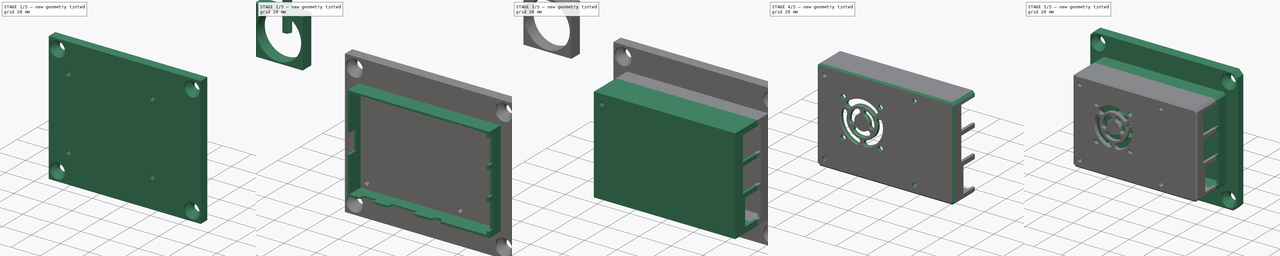
[diagram: build sequence overview — one tinted view per stage of 5, left to right]
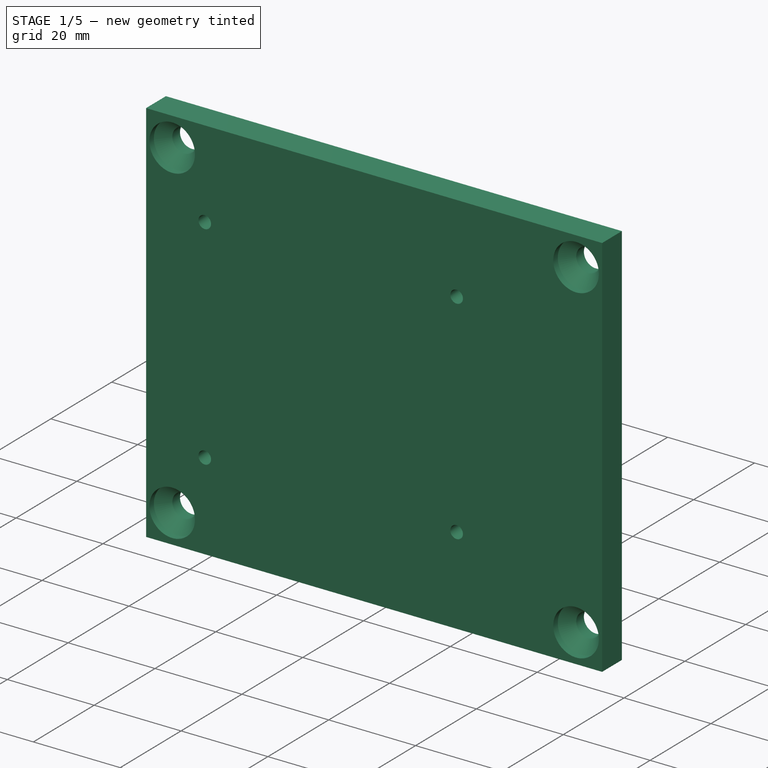
[diagram: stage 1 of 5 — iso view after this stage's code; geometry added in this stage tinted green]
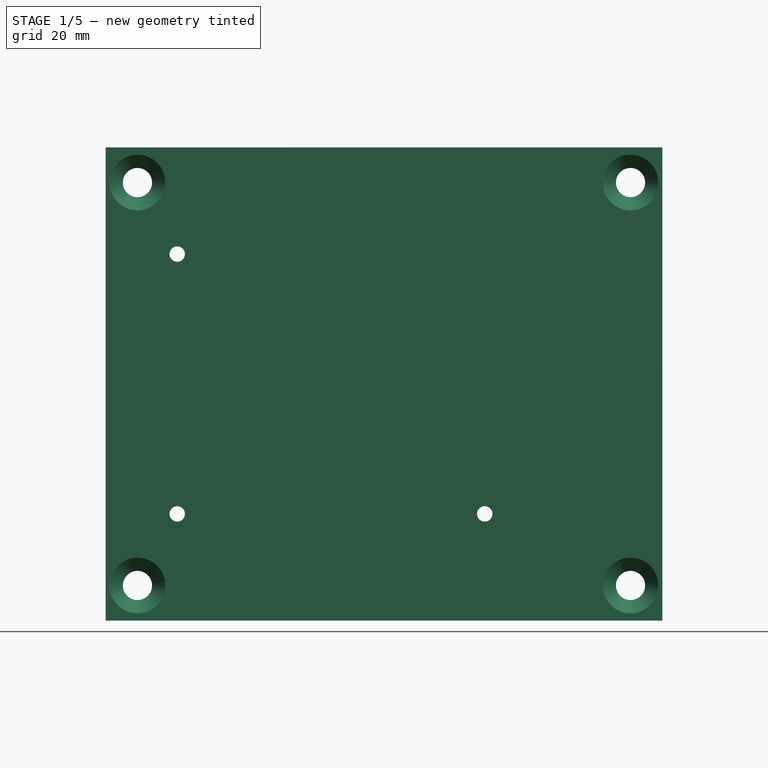
[diagram: stage 1 of 5 — front view after this stage's code; geometry added in this stage tinted green]
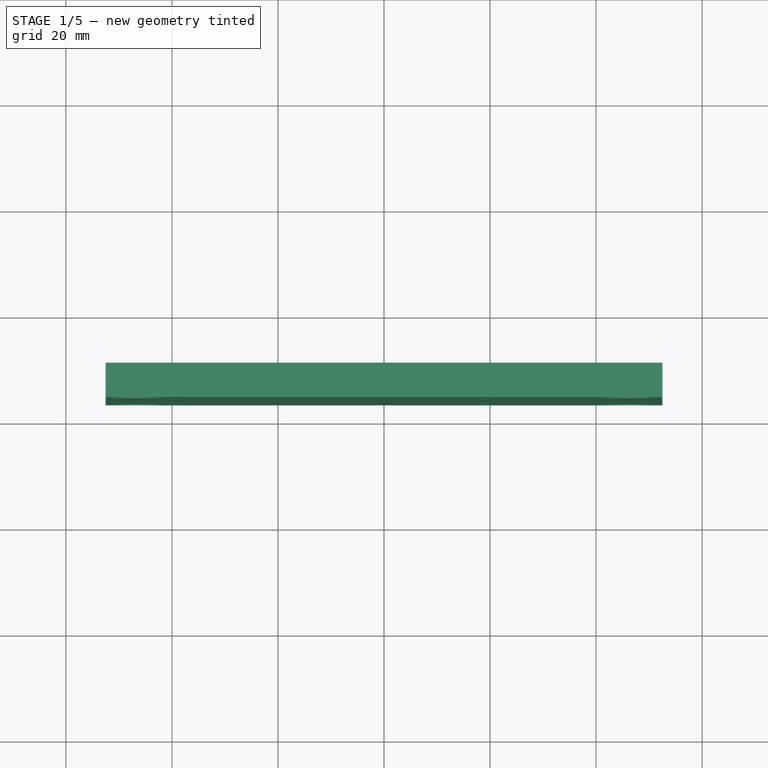
[diagram: stage 1 of 5 — top view after this stage's code; geometry added in this stage tinted green]
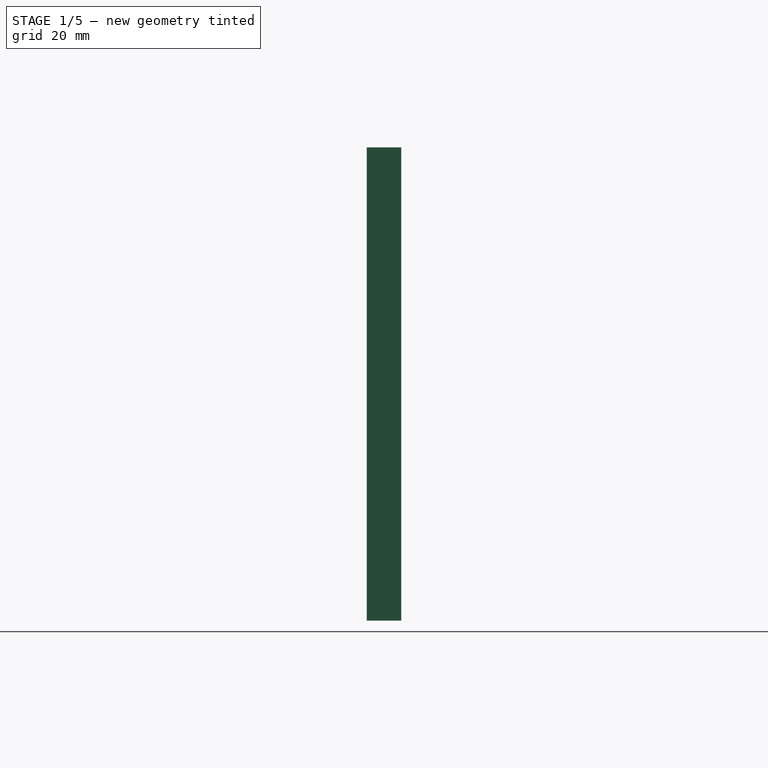
[diagram: stage 1 of 5 — right view after this stage's code; geometry added in this stage tinted green]
FCSTD DOCUMENT  (FreeCAD 0.18R16158 (Git))
Label: rpi_mount
License: All rights reserved
LicenseURL: http://en.wikipedia.org/wiki/All_rights_reserved
objects: Sketcher::SketchObject×42, PartDesign::Pocket×30, PartDesign::ShapeBinder×19, PartDesign::Body×13, PartDesign::Pad×11, PartDesign::Chamfer×10, PartDesign::LinearPattern×9, PartDesign::FeatureBase×7, App::Part×6, PartDesign::MultiTransform×6, PartDesign::Mirrored×4, PartDesign::PolarPattern×3, PartDesign::Plane×3, Part::Feature×1, PartDesign::Hole×1, PartDesign::Line×1
note: 202 computed .brp shape members not serialized (recipe doc carries the construction recipe); baked Part::Feature solids carry a one-line shape summary decoded from their .brp

FEATURE [Sketcher::SketchObject] Sketch
  MapMode = 5
  Placement = pos=(0,0,0) rot=(0.57735,0.57735,0.57735;2.0944rad)
  Support = -> [YZ_Plane001]
  sketch-geometry (8):
    g0: LineSegment StartX=-9 StartY=10 StartZ=0 EndX=9 EndY=10 EndZ=0
    g1: LineSegment StartX=10 StartY=9 StartZ=0 EndX=10 EndY=-9 EndZ=0
    g2: LineSegment StartX=9 StartY=-10 StartZ=0 EndX=-9 EndY=-10 EndZ=0
    g3: LineSegment StartX=-10 StartY=-9 StartZ=0 EndX=-10 EndY=9 EndZ=0
    g4: ArcOfCircle CenterX=9 CenterY=9 CenterZ=0 NormalX=0 NormalY=0 NormalZ=1 AngleXU=0 Radius=1 StartAngle=5e-16 EndAngle=1.5708
    g5: ArcOfCircle CenterX=-9 CenterY=9 CenterZ=0 NormalX=0 NormalY=0 NormalZ=1 AngleXU=0 Radius=1 StartAngle=1.5708 EndAngle=3.14159
    g6: ArcOfCircle CenterX=-9 CenterY=-9 CenterZ=0 NormalX=0 NormalY=0 NormalZ=1 AngleXU=0 Radius=1 StartAngle=3.14159 EndAngle=4.71239
    g7: ArcOfCircle CenterX=9 CenterY=-9 CenterZ=0 NormalX=0 NormalY=0 NormalZ=1 AngleXU=0 Radius=1 StartAngle=4.71239 EndAngle=6.28319
  constraints (18):
    c: Horizontal(g0)
    c: Horizontal(g2)
    c: Vertical(g1)
    c: Vertical(g3)
    c: Tangent(g0,g4) = 1.5708
    c: Tangent(g1,g4) = 1.5708
    c: Tangent(g3,g5) = 1.5708
    c: Tangent(g0,g5) = 1.5708
    c: Tangent(g3,g6) = 1.5708
    c: Tangent(g2,g6) = 1.5708
    c: Tangent(g2,g7) = 1.5708
    c: Tangent(g1,g7) = 1.5708
    c: Equal(g7,g6)
    c: Equal(g0,g1)
    c: Symmetric(g4,g5,g-2)
    c: Symmetric(g4,g7,g-1)
    c: Radius(g4) = 1
    c: DistanceX(g3,g1) = 20
FEATURE [PartDesign::Pad] Pad
  Length = 200
  Length2 = 100
  Placement = pos=(0,0,0) rot=(0.57735,0.57735,0.57735;2.0944rad)
  Profile = -> Sketch
  Refine = true
  Type = 0
FEATURE [Sketcher::SketchObject] Sketch001
  ExternalGeometry = -> [Pad]
  MapMode = 5
  Placement = pos=(200,-4.4e-14,4.4e-14) rot=(0.57735,0.57735,0.57735;2.0944rad)
  Support = -> [Pad]
  sketch-geometry (14):
    g0: LineSegment StartX=-3.125 StartY=10 StartZ=0 EndX=3.125 EndY=10 EndZ=0
    g1: LineSegment StartX=3.125 StartY=10 StartZ=0 EndX=3.125 EndY=7.5 EndZ=0
    g2: LineSegment StartX=2.33579 StartY=3.75 StartZ=0 EndX=-2.33579 EndY=3.75 EndZ=0
    g3: LineSegment StartX=-3.125 StartY=7.5 StartZ=0 EndX=-3.125 EndY=10 EndZ=0
    g4: LineSegment StartX=3.125 StartY=7.5 StartZ=0 EndX=5.08579 EndY=7.5 EndZ=0
    g5: LineSegment StartX=5.08579 StartY=7.5 StartZ=0 EndX=5.08579 EndY=6.5 EndZ=0
    g6: LineSegment StartX=5.08579 StartY=6.5 StartZ=0 EndX=2.33579 EndY=3.75 EndZ=0
    g7: LineSegment StartX=-5.08579 StartY=7.5 StartZ=0 EndX=-5.08579 EndY=6.5 EndZ=0
    g8: LineSegment StartX=-5.08579 StartY=6.5 StartZ=0 EndX=-2.33579 EndY=3.75 EndZ=0
    g9: LineSegment [constr] StartX=-3.125 StartY=7.5 StartZ=0 EndX=3.125 EndY=7.5 EndZ=0
    g10: LineSegment [constr] StartX=0 StartY=0 StartZ=0 EndX=-9 EndY=9 EndZ=0
    g11: LineSegment [constr] StartX=0 StartY=0 StartZ=0 EndX=9 EndY=9 EndZ=0
    g12: LineSegment StartX=-3.125 StartY=7.5 StartZ=0 EndX=-5.08579 EndY=7.5 EndZ=0
    g13: LineSegment [constr] StartX=5.08579 StartY=6.5 StartZ=0 EndX=5.79289 EndY=5.79289 EndZ=0
  constraints (37):
    c: Coincident(g0,g1)
    c: Coincident(g3,g0)
    c: Horizontal(g0)
    c: Vertical(g1)
    c: Vertical(g3)
    c: PointOnObject(g0,g-3)
    c: Horizontal(g4)
    c: Coincident(g5,g4)
    c: Vertical(g5)
    c: Coincident(g6,g5)
    c: Coincident(g6,g2)
    c: Vertical(g7)
    c: Coincident(g8,g7)
    c: Coincident(g8,g2)
    c: Coincident(g1,g4)
    c: Coincident(g9,g1)
    c: DistanceX(g0,g0) = 6.25
    c: DistanceY(g2,g-3) = 6.25
    c: DistanceY(g1,g1) = 2.5
    c: Symmetric(g2,g2,g-2)
    c: Symmetric(g1,g3,g-2)
    c: Equal(g5,g7)
    c: Coincident(g10,g-1)
    c: Coincident(g10,g-4)
    c: Coincident(g11,g-1)
    c: Coincident(g11,g-5)
    c: Parallel(g6,g11)
    c: Coincident(g12,g3)
    c: Coincident(g12,g7)
    c: Horizontal(g12)
    c: Parallel(g8,g10)
    c: Coincident(g13,g5)
    c: PointOnObject(g13,g11)
    c: Perpendicular(g6,g13)
    c: Distance(g13) = 1
    c: DistanceY(g7,g7) = 1
    c: Coincident(g9,g3)
FEATURE [PartDesign::Pocket] Pocket
  BaseFeature = -> Pad
  Length = 5
  Length2 = 100
  Placement = pos=(0,0,0) rot=(0.57735,0.57735,0.57735;2.0944rad)
  Profile = -> Sketch001
  Refine = true
  Type = 1
FEATURE [PartDesign::PolarPattern] PolarPattern
  Angle = 360
  Axis = -> Sketch001 [N_Axis]
  BaseFeature = -> Pocket
  Occurrences = 4
  Originals = -> [Pocket]
  Placement = pos=(0,0,0) rot=(0.57735,0.57735,0.57735;2.0944rad)
  Refine = true
FEATURE [Sketcher::SketchObject] Sketch002
  MapMode = 5
  Placement = pos=(200,-4.4e-14,4.4e-14) rot=(0.57735,0.57735,0.57735;2.0944rad)
  Support = -> [PolarPattern]
  sketch-geometry (1):
    g0: Circle CenterX=0 CenterY=0 CenterZ=0 NormalX=0 NormalY=0 NormalZ=1 AngleXU=0 Radius=2.1
  constraints (2):
    c: Coincident(g0,g-1)
    c: Diameter(g0) = 4.2
FEATURE [PartDesign::Pocket] Pocket001
  BaseFeature = -> PolarPattern
  Length = 5
  Length2 = 100
  Placement = pos=(0,0,0) rot=(0.57735,0.57735,0.57735;2.0944rad)
  Profile = -> Sketch002
  Refine = true
  Type = 1
FEATURE [PartDesign::Body] Body  label="2020_top"
  Group = -> [Sketch,Pad,Sketch001,Pocket,PolarPattern,Sketch002,Pocket001]
  Origin = -> Origin001
  Tip = -> Pocket001
FEATURE [PartDesign::FeatureBase] Clone
  BaseFeature = -> Body
FEATURE [PartDesign::Body] Body001  label="2020_bottom"
  BaseFeature = -> Body
  Group = -> [Clone]
  Origin = -> Origin002
  Placement = pos=(0,0,-76) rot=(0,0,1;0rad)
  Tip = -> Clone
FEATURE [App::Part] Part  label="3018"
  Group = -> [Body,Body001]
  Origin = -> Origin
FEATURE [Part::Feature] Part__Feature  label="raspberryPi3BSimplified_STEP"
  Placement = pos=(100,-19,-38) rot=(1,0,0;1.5708rad)
  shape: bbox 87 x 18.55 x 58.5 mm, 820 faces (baked)
FEATURE [PartDesign::ShapeBinder] ShapeBinder
  Support = -> [Pocket001]
  TraceSupport = true
FEATURE [PartDesign::ShapeBinder] ShapeBinder001
  Placement = pos=(0,0,-76) rot=(0,0,1;0rad)
  Support = -> [Clone]
  TraceSupport = true
FEATURE [PartDesign::ShapeBinder] ShapeBinder002
  Placement = pos=(100,-22.5,-38) rot=(1,0,0;1.5708rad)
  Support = -> [Part__Feature]
  TraceSupport = true
FEATURE [Sketcher::SketchObject] Sketch003
  ExternalGeometry = -> [ShapeBinder,ShapeBinder001,ShapeBinder002]
  MapMode = 5
  Placement = pos=(-4.4e-15,-10,2.2e-15) rot=(1,0,0;1.5708rad)
  Support = -> [ShapeBinder]
  sketch-geometry (4):
    g0: LineSegment StartX=47.5 StartY=6.625 StartZ=0 EndX=152.5 EndY=6.625 EndZ=0
    g1: LineSegment StartX=152.5 StartY=6.625 StartZ=0 EndX=152.5 EndY=-82.625 EndZ=0
    g2: LineSegment StartX=152.5 StartY=-82.625 StartZ=0 EndX=47.5 EndY=-82.625 EndZ=0
    g3: LineSegment StartX=47.5 StartY=-82.625 StartZ=0 EndX=47.5 EndY=6.625 EndZ=0
  constraints (12):
    c: Coincident(g0,g1)
    c: Coincident(g1,g2)
    c: Coincident(g2,g3)
    c: Coincident(g3,g0)
    c: Horizontal(g0)
    c: Horizontal(g2)
    c: Vertical(g1)
    c: Vertical(g3)
    c: DistanceX(g-5,g0) = 10
    c: DistanceX(g0,g-6) = 10
    c: DistanceY(g-3,g0) = 3.5
    c: DistanceY(g1,g-4) = 3.5
FEATURE [PartDesign::Pad] Pad001
  Length = 6.5
  Length2 = 100
  Profile = -> Sketch003
  Refine = true
  Type = 0
FEATURE [PartDesign::Plane] DatumPlane
  AttachmentOffset = pos=(0,0,-52.5) rot=(0,0,1;0rad)
  Length = 36.4087
  MapMode = 5
  Placement = pos=(100,-4.38e-14,0) rot=(0.57735,0.57735,0.57735;2.0944rad)
  ResizeMode = 0
  Support = -> [Pad001]
  Width = 102.534
FEATURE [PartDesign::Plane] DatumPlane001
  AttachmentOffset = pos=(0,0,-44.625) rot=(0,0,1;0rad)
  Length = 175.624
  MapMode = 5
  Placement = pos=(0,-8.4e-15,-38) rot=(0,0,1;0rad)
  ResizeMode = 0
  Support = -> [Pad001]
  Width = 39.6244
FEATURE [Sketcher::SketchObject] Sketch004
  ExternalGeometry = -> [Pad001,ShapeBinder]
  MapMode = 5
  Placement = pos=(-7.3e-15,-16.5,3.6e-15) rot=(1,0,0;1.5708rad)
  Support = -> [Pad001]
  sketch-geometry (3):
    g0: Circle [constr] CenterX=146.5 CenterY=7.25e-14 CenterZ=0 NormalX=0 NormalY=0 NormalZ=1 AngleXU=0 Radius=2.65
    g1: LineSegment [constr] StartX=146.5 StartY=-3.125 StartZ=0 EndX=146.5 EndY=3.125 EndZ=0
    g2: Circle CenterX=146.5 CenterY=7.25e-14 CenterZ=0 NormalX=0 NormalY=0 NormalZ=1 AngleXU=0 Radius=5.25
  constraints (8):
    c: PointOnObject(g1,g-5)
    c: PointOnObject(g1,g-4)
    c: Vertical(g1)
    c: Symmetric(g1,g1,g0)
    c: Diameter(g0) = 5.3
    c: DistanceX(g1,g-3) = 6
    c: Coincident(g2,g0)
    c: Diameter(g2) = 10.5
FEATURE [PartDesign::Pocket] Pocket002
  BaseFeature = -> Pad001
  Length = 1.5
  Length2 = 100
  Profile = -> Sketch004
  Refine = true
  Type = 0
FEATURE [PartDesign::Mirrored] Mirrored
  MirrorPlane = -> DatumPlane
  Refine = true
FEATURE [PartDesign::Mirrored] Mirrored001
  MirrorPlane = -> DatumPlane001
  Refine = true
FEATURE [PartDesign::MultiTransform] MultiTransform
  BaseFeature = -> Pocket002
  Originals = -> [Pocket002]
  Refine = true
  Transformations = -> [Mirrored,Mirrored001]
FEATURE [Sketcher::SketchObject] Sketch005
  ExternalGeometry = -> [MultiTransform]
  MapMode = 5
  Placement = pos=(-6.7e-15,-15,6.6e-15) rot=(1,0,0;1.5708rad)
  Support = -> [MultiTransform]
  sketch-geometry (1):
    g0: Circle CenterX=146.5 CenterY=-76 CenterZ=0 NormalX=0 NormalY=0 NormalZ=1 AngleXU=0 Radius=2.65
  constraints (2):
    c: Coincident(g0,g-3)
    c: Diameter(g0) = 5.3
FEATURE [PartDesign::Hole] Hole
  BaseFeature = -> MultiTransform
  Depth = 25
  DepthType = 1
  Diameter = 5.5
  DrillPoint = 1
  DrillPointAngle = 118
  HoleCutCountersinkAngle = 90
  HoleCutDepth = 0
  HoleCutDiameter = 10.5
  HoleCutType = 2
  ModelActualThread = false
  Profile = -> Sketch005
  Refine = true
  Tapered = false
  TaperedAngle = 90
  ThreadAngle = 0
  ThreadClass = 0
  ThreadCutOffInner = 0
  ThreadCutOffOuter = 0
  ThreadDirection = 0
  ThreadFit = 0
  ThreadPitch = 0
  ThreadSize = 0
  ThreadType = 0
  Threaded = false
FEATURE [PartDesign::Mirrored] Mirrored002
  MirrorPlane = -> DatumPlane
  Refine = true
FEATURE [PartDesign::Mirrored] Mirrored003
  MirrorPlane = -> DatumPlane001
  Refine = true
FEATURE [PartDesign::MultiTransform] MultiTransform001
  BaseFeature = -> Hole
  Originals = -> [Hole]
  Refine = true
  Transformations = -> [Mirrored002,Mirrored003]
FEATURE [Sketcher::SketchObject] Sketch006
  ExternalGeometry = -> [ShapeBinder002]
  MapMode = 5
  Placement = pos=(-7.3e-15,-16.5,3.6e-15) rot=(1,0,0;1.5708rad)
  Support = -> [MultiTransform001]
  sketch-geometry (4):
    g0: Circle CenterX=119 CenterY=-13.5 CenterZ=0 NormalX=0 NormalY=0 NormalZ=1 AngleXU=0 Radius=1.45
    g1: Circle CenterX=61 CenterY=-13.5 CenterZ=0 NormalX=0 NormalY=0 NormalZ=1 AngleXU=0 Radius=1.45
    g2: Circle CenterX=61 CenterY=-62.5 CenterZ=0 NormalX=0 NormalY=0 NormalZ=1 AngleXU=0 Radius=1.45
    g3: Circle CenterX=119 CenterY=-62.5 CenterZ=0 NormalX=0 NormalY=0 NormalZ=1 AngleXU=0 Radius=1.45
  constraints (8):
    c: Coincident(g0,g-3)
    c: Coincident(g1,g-4)
    c: Coincident(g2,g-5)
    c: Coincident(g3,g-6)
    c: Equal(g0,g1)
    c: Equal(g2,g1)
    c: Equal(g2,g3)
    c: Diameter(g0) = 2.9
FEATURE [PartDesign::Pocket] Pocket003
  BaseFeature = -> MultiTransform001
  Length = 5
  Length2 = 100
  Profile = -> Sketch006
  Refine = true
  Type = 1
FEATURE [PartDesign::Body] Body006  label="m2.5 x 6mm standoff005"
  BaseFeature = -> Body003
  Group = -> [Clone003]
  Origin = -> Origin011
  Placement = pos=(58,0,-49) rot=(0,0,1;0rad)
  Tip = -> Clone003
FEATURE [App::Part] Part004  label="L6mm standoffs"
  Group = -> [Body003,Body004,Body005,Body006]
  Origin = -> Origin009
FEATURE [Sketcher::SketchObject] Sketch010
  ExternalGeometry = -> [Pocket003]
  MapMode = 5
  Placement = pos=(-4.4e-15,-10,2.2e-15) rot=(0,0.707107,0.707107;3.14159rad)
  Support = -> [Pocket003]
  sketch-geometry (7):
    g0: LineSegment StartX=-120.501 StartY=-10.9 StartZ=0 EndX=-122.002 EndY=-13.5 EndZ=0
    g1: LineSegment StartX=-122.002 StartY=-13.5 StartZ=0 EndX=-120.501 EndY=-16.1 EndZ=0
    g2: LineSegment StartX=-120.501 StartY=-16.1 StartZ=0 EndX=-117.499 EndY=-16.1 EndZ=0
    g3: LineSegment StartX=-117.499 StartY=-16.1 StartZ=0 EndX=-115.998 EndY=-13.5 EndZ=0
    g4: LineSegment StartX=-115.998 StartY=-13.5 StartZ=0 EndX=-117.499 EndY=-10.9 EndZ=0
    g5: LineSegment StartX=-117.499 StartY=-10.9 StartZ=0 EndX=-120.501 EndY=-10.9 EndZ=0
    g6: Circle [constr] CenterX=-119 CenterY=-13.5 CenterZ=0 NormalX=0 NormalY=0 NormalZ=1 AngleXU=0 Radius=3.00222
  constraints (16):
    c: Coincident(g0,g1)
    c: Coincident(g1,g2)
    c: Coincident(g2,g3)
    c: Coincident(g3,g4)
    c: Coincident(g4,g5)
    c: Coincident(g5,g0)
    c: Equal(g0, g1-g5) x5
    c: PointOnObject(g0,g6)
    c: PointOnObject(g1,g6)
    c: PointOnObject(g2,g6)
    c: PointOnObject(g3,g6)
    c: PointOnObject(g4,g6)
    c: PointOnObject(g5,g6)
    c: Coincident(g6,g-3)
    c: Horizontal(g5)
    c: DistanceY(g2,g4) = 5.2
FEATURE [PartDesign::Pocket] Pocket005
  BaseFeature = -> Pocket003
  Length = 2.5
  Length2 = 100
  Profile = -> Sketch010
  Refine = true
  Type = 0
FEATURE [PartDesign::LinearPattern] LinearPattern
  Direction = -> Sketch010 [H_Axis]
  Length = 58
  Occurrences = 2
  Refine = true
FEATURE [PartDesign::LinearPattern] LinearPattern001
  Direction = -> Sketch010 [V_Axis]
  Length = 49
  Occurrences = 2
  Refine = true
  Reversed = true
FEATURE [PartDesign::MultiTransform] MultiTransform002
  BaseFeature = -> Pocket005
  Originals = -> [Pocket005]
  Refine = true
  Transformations = -> [LinearPattern,LinearPattern001]
FEATURE [Sketcher::SketchObject] Sketch011
  ExternalGeometry = -> [MultiTransform002]
  MapMode = 5
  Placement = pos=(-7.4e-15,-12.5,4.3e-15) rot=(0,0.707107,0.707107;3.14159rad)
  Support = -> [MultiTransform002]
  sketch-geometry (1):
    g0: Circle CenterX=-119 CenterY=-13.5 CenterZ=0 NormalX=0 NormalY=0 NormalZ=1 AngleXU=0 Radius=1.45
  constraints (2):
    c: Equal(g0,g-3)
    c: Coincident(g0,g-3)
FEATURE [PartDesign::Pad] Pad004
  BaseFeature = -> MultiTransform002
  Length = 0.2
  Length2 = 100
  Profile = -> Sketch011
  Refine = true
  Reversed = true
  Type = 0
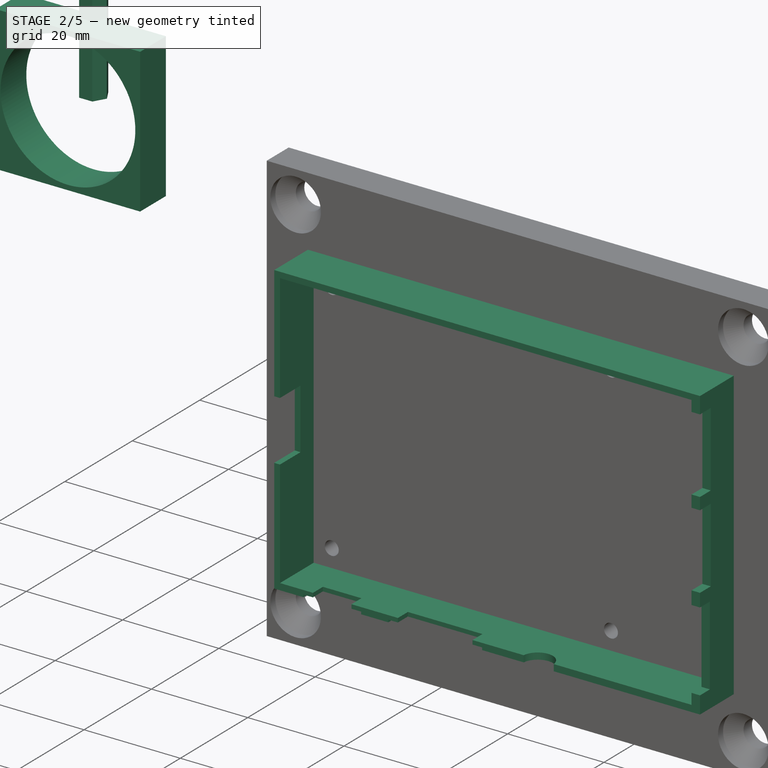
[diagram: stage 2 of 5 — iso view after this stage's code; geometry added in this stage tinted green]
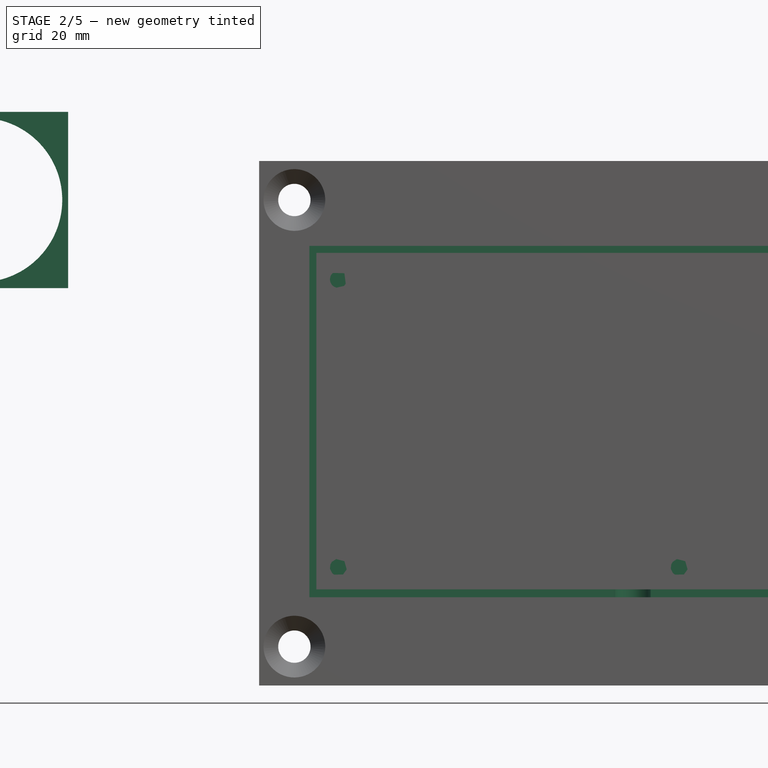
[diagram: stage 2 of 5 — front view after this stage's code; geometry added in this stage tinted green]
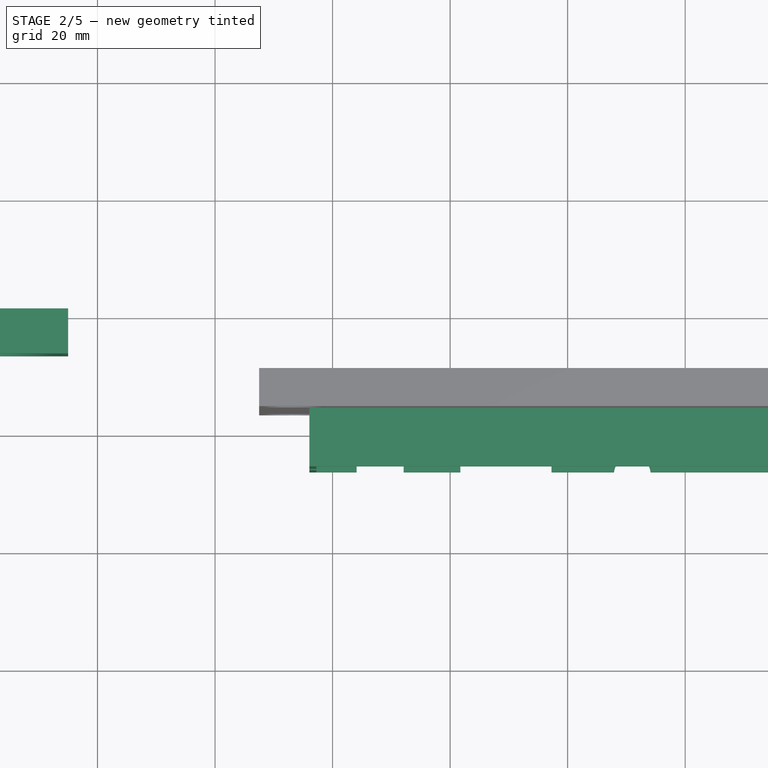
[diagram: stage 2 of 5 — top view after this stage's code; geometry added in this stage tinted green]
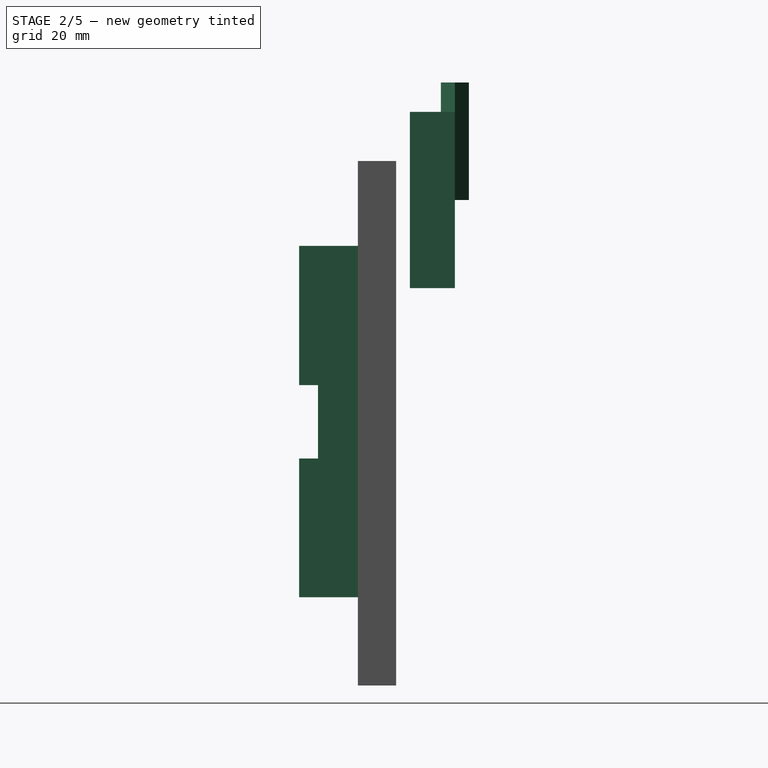
[diagram: stage 2 of 5 — right view after this stage's code; geometry added in this stage tinted green]
FEATURE [PartDesign::LinearPattern] LinearPattern002
  Direction = -> Sketch011 [H_Axis]
  Length = 58
  Occurrences = 2
  Refine = true
FEATURE [PartDesign::LinearPattern] LinearPattern003
  Direction = -> Sketch011 [V_Axis]
  Length = 49
  Occurrences = 2
  Refine = true
  Reversed = true
FEATURE [PartDesign::MultiTransform] MultiTransform003
  BaseFeature = -> Pad004
  Originals = -> [Pad004]
  Refine = true
  Transformations = -> [LinearPattern002,LinearPattern003]
FEATURE [PartDesign::Chamfer] Chamfer
  Base = -> MultiTransform003 [Edge20,Edge19,Edge21,Edge23,Edge24,Edge22,Edge13,Edge15,Edge17,Edge18,Edge14,Edge16,Edge26,Edge27,Edge28,Edge29,Edge30,Edge31,Edge33,Edge35,Edge37,Edge38,Edge36,Edge34]
  BaseFeature = -> MultiTransform003
  Size = 0.2
FEATURE [PartDesign::ShapeBinder] ShapeBinder003
  Placement = pos=(0,-3.5,0) rot=(0,0,1;0rad)
  Support = -> [Part__Feature]
  TraceSupport = true
FEATURE [Sketcher::SketchObject] Sketch012
  ExternalGeometry = -> [ShapeBinder003,ShapeBinder002]
  MapMode = 5
  Placement = pos=(-7.3e-15,-16.5,3.6e-15) rot=(1,0,0;1.5708rad)
  Support = -> [Chamfer]
  sketch-geometry (8):
    g0: LineSegment StartX=57.25 StartY=-9 StartZ=0 EndX=142.75 EndY=-9 EndZ=0
    g1: LineSegment StartX=142.75 StartY=-9 StartZ=0 EndX=142.75 EndY=-66.25 EndZ=0
    g2: LineSegment StartX=142.75 StartY=-66.25 StartZ=0 EndX=57.25 EndY=-66.25 EndZ=0
    g3: LineSegment StartX=57.25 StartY=-66.25 StartZ=0 EndX=57.25 EndY=-9 EndZ=0
    g4: LineSegment StartX=56.05 StartY=-7.8 StartZ=0 EndX=144.5 EndY=-7.8 EndZ=0
    g5: LineSegment StartX=144.5 StartY=-7.8 StartZ=0 EndX=144.5 EndY=-67.6 EndZ=0
    g6: LineSegment StartX=144.5 StartY=-67.6 StartZ=0 EndX=56.05 EndY=-67.6 EndZ=0
    g7: LineSegment StartX=56.05 StartY=-67.6 StartZ=0 EndX=56.05 EndY=-7.8 EndZ=0
  constraints (24):
    c: Horizontal(g0)
    c: Coincident(g1,g0)
    c: Vertical(g1)
    c: Coincident(g2,g1)
    c: Horizontal(g2)
    c: Coincident(g3,g2)
    c: Coincident(g3,g0)
    c: Vertical(g3)
    c: Coincident(g4,g5)
    c: Coincident(g5,g6)
    c: Coincident(g6,g7)
    c: Coincident(g7,g4)
    c: Horizontal(g4)
    c: Horizontal(g6)
    c: Vertical(g5)
    c: Vertical(g7)
    c: DistanceX(g-15,g0) = 0.25
    c: DistanceX(g0,g-12) = 0.25
    c: DistanceY(g-13,g0) = 1
    c: DistanceY(g1,g-14) = 0.25
    c: DistanceY(g6,g-9) = 0.25
    c: PointOnObject(g-3,g5)
    c: DistanceX(g4,g0) = 1.2
    c: DistanceY(g0,g4) = 1.2
FEATURE [PartDesign::Pad] Pad005
  BaseFeature = -> Chamfer
  Length = 10
  Length2 = 100
  Profile = -> Sketch012
  Refine = true
  Type = 0
FEATURE [PartDesign::ShapeBinder] ShapeBinder004
  Placement = pos=(100,-22.5,-38) rot=(1,0,0;1.5708rad)
  Support = -> [Part__Feature]
  TraceSupport = true
FEATURE [Sketcher::SketchObject] Sketch013
  ExternalGeometry = -> [ShapeBinder004,Pad005]
  MapMode = 5
  Placement = pos=(144.5,0,0) rot=(0.57735,0.57735,0.57735;2.0944rad)
  sketch-geometry (4):
    g0: LineSegment StartX=-26.5 StartY=-11.25 StartZ=0 EndX=-23.3 EndY=-11.25 EndZ=0
    g1: LineSegment StartX=-23.3 StartY=-11.25 StartZ=0 EndX=-23.3 EndY=-26.75 EndZ=0
    g2: LineSegment StartX=-23.3 StartY=-26.75 StartZ=0 EndX=-26.5 EndY=-26.75 EndZ=0
    g3: LineSegment StartX=-26.5 StartY=-26.75 StartZ=0 EndX=-26.5 EndY=-11.25 EndZ=0
  constraints (12):
    c: Coincident(g0,g1)
    c: Coincident(g1,g2)
    c: Coincident(g2,g3)
    c: Coincident(g3,g0)
    c: Horizontal(g0)
    c: Horizontal(g2)
    c: Vertical(g1)
    c: Vertical(g3)
    c: PointOnObject(g0,g-7)
    c: DistanceY(g-3,g0) = 0.25
    c: DistanceY(g2,g-4) = 0.25
    c: DistanceX(g-6,g0) = 0.25
FEATURE [PartDesign::Pocket] Pocket006
  BaseFeature = -> Pad005
  Length = 5
  Length2 = 100
  Profile = -> Sketch013
  Refine = true
  Type = 2
FEATURE [PartDesign::ShapeBinder] ShapeBinder005
  Placement = pos=(100,-22.5,-38) rot=(1,0,0;1.5708rad)
  Support = -> [Part__Feature]
  TraceSupport = true
FEATURE [Sketcher::SketchObject] Sketch014
  ExternalGeometry = -> [Pocket006,ShapeBinder005]
  MapMode = 5
  Placement = pos=(144.5,0,0) rot=(0.57735,0.57735,0.57735;2.0944rad)
  sketch-geometry (4):
    g0: LineSegment StartX=-26.5 StartY=-29.25 StartZ=0 EndX=-23.3 EndY=-29.25 EndZ=0
    g1: LineSegment StartX=-23.3 StartY=-29.25 StartZ=0 EndX=-23.3 EndY=-44.75 EndZ=0
    g2: LineSegment StartX=-23.3 StartY=-44.75 StartZ=0 EndX=-26.5 EndY=-44.75 EndZ=0
    g3: LineSegment StartX=-26.5 StartY=-44.75 StartZ=0 EndX=-26.5 EndY=-29.25 EndZ=0
  constraints (12):
    c: Coincident(g0,g1)
    c: Coincident(g1,g2)
    c: Coincident(g2,g3)
    c: Coincident(g3,g0)
    c: Horizontal(g0)
    c: Horizontal(g2)
    c: Vertical(g1)
    c: Vertical(g3)
    c: PointOnObject(g0,g-3)
    c: DistanceY(g-4,g0) = 0.25
    c: DistanceY(g2,g-6) = 0.25
    c: DistanceX(g-5,g0) = 0.25
FEATURE [PartDesign::Pocket] Pocket007
  BaseFeature = -> Pocket006
  Length = 5
  Length2 = 100
  Profile = -> Sketch014
  Refine = true
  Type = 2
FEATURE [PartDesign::ShapeBinder] ShapeBinder006
  Placement = pos=(100,-22.5,-38) rot=(1,0,0;1.5708rad)
  Support = -> [Part__Feature]
  TraceSupport = true
FEATURE [Sketcher::SketchObject] Sketch015
  ExternalGeometry = -> [ShapeBinder006,Pocket007]
  MapMode = 5
  Placement = pos=(144.5,0,0) rot=(0.57735,0.57735,0.57735;2.0944rad)
  sketch-geometry (4):
    g0: LineSegment StartX=-26.5 StartY=-47.5 StartZ=0 EndX=-23.55 EndY=-47.5 EndZ=0
    g1: LineSegment StartX=-23.55 StartY=-47.5 StartZ=0 EndX=-23.55 EndY=-64 EndZ=0
    g2: LineSegment StartX=-23.55 StartY=-64 StartZ=0 EndX=-26.5 EndY=-64 EndZ=0
    g3: LineSegment StartX=-26.5 StartY=-64 StartZ=0 EndX=-26.5 EndY=-47.5 EndZ=0
  constraints (12):
    c: Coincident(g0,g1)
    c: Coincident(g1,g2)
    c: Coincident(g2,g3)
    c: Coincident(g3,g0)
    c: Horizontal(g0)
    c: Horizontal(g2)
    c: Vertical(g1)
    c: Vertical(g3)
    c: PointOnObject(g0,g-6)
    c: DistanceY(g-5,g0) = 0.25
    c: DistanceY(g2,g-5) = 0.25
    c: DistanceX(g-5,g0) = 0.25
FEATURE [PartDesign::Pocket] Pocket008
  BaseFeature = -> Pocket007
  Length = 5
  Length2 = 100
  Profile = -> Sketch015
  Refine = true
  Type = 2
FEATURE [PartDesign::ShapeBinder] ShapeBinder007
  Placement = pos=(0,-3.5,0) rot=(0,0,1;0rad)
  Support = -> [Part__Feature]
  TraceSupport = true
FEATURE [Sketcher::SketchObject] Sketch016
  ExternalGeometry = -> [ShapeBinder007]
  MapMode = 5
  Placement = pos=(0,0,-67.6) rot=(0,0,1;0rad)
  sketch-geometry (1):
    g0: Circle CenterX=111 CenterY=-26.8 CenterZ=0 NormalX=0 NormalY=0 NormalZ=1 AngleXU=0 Radius=3.125
  constraints (2):
    c: Diameter(g0) = 6.25
    c: Coincident(g0,g-3)
FEATURE [PartDesign::Pocket] Pocket009
  BaseFeature = -> Pocket008
  Length = 5
  Length2 = 100
  Profile = -> Sketch016
  Refine = true
  Reversed = true
  Type = 0
FEATURE [PartDesign::ShapeBinder] ShapeBinder008
  Placement = pos=(100,-22.5,-38) rot=(1,0,0;1.5708rad)
  Support = -> [Part__Feature]
  TraceSupport = true
FEATURE [Sketcher::SketchObject] Sketch017
  ExternalGeometry = -> [ShapeBinder008,Pocket009]
  MapMode = 5
  Placement = pos=(0,0,-67.6) rot=(1,0,0;3.14159rad)
  sketch-geometry (4):
    g0: LineSegment StartX=81.75 StartY=26.5 StartZ=0 EndX=97.25 EndY=26.5 EndZ=0
    g1: LineSegment StartX=97.25 StartY=26.5 StartZ=0 EndX=97.25 EndY=23.55 EndZ=0
    g2: LineSegment StartX=97.25 StartY=23.55 StartZ=0 EndX=81.75 EndY=23.55 EndZ=0
    g3: LineSegment StartX=81.75 StartY=23.55 StartZ=0 EndX=81.75 EndY=26.5 EndZ=0
  constraints (12):
    c: Coincident(g0,g1)
    c: Coincident(g1,g2)
    c: Coincident(g2,g3)
    c: Coincident(g3,g0)
    c: Horizontal(g0)
    c: Horizontal(g2)
    c: Vertical(g1)
    c: Vertical(g3)
    c: PointOnObject(g0,g-5)
    c: DistanceX(g0,g-4) = 0.25
    c: DistanceX(g-3,g0) = 0.25
    c: DistanceY(g1,g-3) = 0.25
FEATURE [PartDesign::Pocket] Pocket010
  BaseFeature = -> Pocket009
  Length = 5
  Length2 = 100
  Profile = -> Sketch017
  Refine = true
  Type = 2
FEATURE [PartDesign::ShapeBinder] ShapeBinder009
  Placement = pos=(100,-22.5,-38) rot=(1,0,0;1.5708rad)
  Support = -> [Part__Feature]
  TraceSupport = true
FEATURE [Sketcher::SketchObject] Sketch018
  ExternalGeometry = -> [ShapeBinder009,Pocket010]
  MapMode = 5
  Placement = pos=(0,0,-67.6) rot=(1,0,0;3.14159rad)
  sketch-geometry (4):
    g0: LineSegment StartX=64.1 StartY=26.5 StartZ=0 EndX=72.1 EndY=26.5 EndZ=0
    g1: LineSegment StartX=72.1 StartY=26.5 StartZ=0 EndX=72.1 EndY=23.55 EndZ=0
    g2: LineSegment StartX=72.1 StartY=23.55 StartZ=0 EndX=64.1 EndY=23.55 EndZ=0
    g3: LineSegment StartX=64.1 StartY=23.55 StartZ=0 EndX=64.1 EndY=26.5 EndZ=0
  constraints (12):
    c: Coincident(g0,g1)
    c: Coincident(g1,g2)
    c: Coincident(g2,g3)
    c: Coincident(g3,g0)
    c: Horizontal(g0)
    c: Horizontal(g2)
    c: Vertical(g1)
    c: Vertical(g3)
    c: PointOnObject(g0,g-5)
    c: DistanceX(g0,g-4) = 0.25
    c: DistanceX(g-3,g0) = 0.25
    c: DistanceY(g1,g-3) = 0.25
FEATURE [PartDesign::Pocket] Pocket011
  BaseFeature = -> Pocket010
  Length = 5
  Length2 = 100
  Profile = -> Sketch018
  Refine = true
  Type = 2
FEATURE [PartDesign::ShapeBinder] ShapeBinder010
  Placement = pos=(100,-22.5,-38) rot=(1,0,0;1.5708rad)
  Support = -> [Part__Feature]
  TraceSupport = true
FEATURE [Sketcher::SketchObject] Sketch019
  ExternalGeometry = -> [ShapeBinder010,Pocket011]
  MapMode = 5
  Placement = pos=(56.05,0,0) rot=(-0.57735,0.57735,0.57735;4.18879rad)
  sketch-geometry (4):
    g0: LineSegment StartX=26.5 StartY=-31.5 StartZ=0 EndX=20.4 EndY=-31.5 EndZ=0
    g1: LineSegment StartX=20.4 StartY=-31.5 StartZ=0 EndX=20.4 EndY=-44 EndZ=0
    g2: LineSegment StartX=20.4 StartY=-44 StartZ=0 EndX=26.5 EndY=-44 EndZ=0
    g3: LineSegment StartX=26.5 StartY=-44 StartZ=0 EndX=26.5 EndY=-31.5 EndZ=0
  constraints (12):
    c: Coincident(g0,g1)
    c: Coincident(g1,g2)
    c: Coincident(g2,g3)
    c: Coincident(g3,g0)
    c: Horizontal(g0)
    c: Horizontal(g2)
    c: Vertical(g1)
    c: Vertical(g3)
    c: PointOnObject(g0,g-5)
    c: DistanceX(g0,g-3) = 1
    c: DistanceY(g-3,g0) = 0.5
    c: DistanceY(g2,g-4) = 0.5
FEATURE [PartDesign::Pocket] Pocket012
  BaseFeature = -> Pocket011
  Length = 5
  Length2 = 100
  Profile = -> Sketch019
  Refine = true
  Type = 2
FEATURE [Sketcher::SketchObject] Sketch020
  MapMode = 5
  Placement = pos=(0,0,0) rot=(1,0,0;1.5708rad)
  Support = -> [XZ_Plane012]
  sketch-geometry (5):
    g0: LineSegment StartX=-15 StartY=15 StartZ=0 EndX=15 EndY=15 EndZ=0
    g1: LineSegment StartX=15 StartY=15 StartZ=0 EndX=15 EndY=-15 EndZ=0
    g2: LineSegment StartX=15 StartY=-15 StartZ=0 EndX=-15 EndY=-15 EndZ=0
    g3: LineSegment StartX=-15 StartY=-15 StartZ=0 EndX=-15 EndY=15 EndZ=0
    g4: Circle CenterX=0 CenterY=0 CenterZ=0 NormalX=0 NormalY=0 NormalZ=1 AngleXU=0 Radius=14
  constraints (12):
    c: Coincident(g0,g1)
    c: Coincident(g1,g2)
    c: Coincident(g2,g3)
    c: Coincident(g3,g0)
    c: Horizontal(g2)
    c: Vertical(g3)
    c: Symmetric(g0,g0,g-2)
    c: Symmetric(g0,g1,g-1)
    c: Equal(g0,g1)
    c: DistanceX(g0,g0) = 30
    c: Coincident(g4,g-1)
    c: Diameter(g4) = 28
FEATURE [PartDesign::Pad] Pad006
  Length = 7.65
  Length2 = 100
  Placement = pos=(0,0,0) rot=(1,0,0;1.5708rad)
  Profile = -> Sketch020
  Refine = true
  Type = 0
FEATURE [PartDesign::Body] Body007  label="pifan"
  Group = -> [Sketch020,Pad006]
  Origin = -> Origin012
  Placement = pos=(85,-32.65,-35) rot=(0,0,1;0rad)
  Tip = -> Pad006
FEATURE [App::Part] Part001  label="rpi"
  Group = -> [Part__Feature,Body007]
  Origin = -> Origin003
  Placement = pos=(0,-3.5,0) rot=(0,0,1;0rad)
FEATURE [PartDesign::ShapeBinder] ShapeBinder011
  Support = -> [Pocket012]
  TraceSupport = true
FEATURE [PartDesign::Plane] DatumPlane002
  AttachmentOffset = pos=(0,0,17.3) rot=(0,0,1;0rad)
  Length = 176.399
  MapMode = 5
  Placement = pos=(-1.94e-14,-43.8,1.01e-14) rot=(1,0,0;1.5708rad)
  ResizeMode = 0
  Support = -> [ShapeBinder011]
  Width = 99.499
FEATURE [Sketcher::SketchObject] Sketch022
  MapMode = 5
  Support = -> [XY_Plane015]
  sketch-geometry (7):
    g0: LineSegment StartX=1.37121 StartY=2.375 StartZ=0 EndX=-1.37121 EndY=2.375 EndZ=0
    g1: LineSegment StartX=-1.37121 StartY=2.375 StartZ=0 EndX=-2.74241 EndY=-4e-16 EndZ=0
    g2: LineSegment StartX=-2.74241 StartY=-4e-16 StartZ=0 EndX=-1.37121 EndY=-2.375 EndZ=0
    g3: LineSegment StartX=-1.37121 StartY=-2.375 StartZ=0 EndX=1.37121 EndY=-2.375 EndZ=0
    g4: LineSegment StartX=1.37121 StartY=-2.375 StartZ=0 EndX=2.74241 EndY=0 EndZ=0
    g5: LineSegment StartX=2.74241 StartY=-1e-16 StartZ=0 EndX=1.37121 EndY=2.375 EndZ=0
    g6: Circle [constr] CenterX=0 CenterY=0 CenterZ=0 NormalX=0 NormalY=0 NormalZ=1 AngleXU=0 Radius=2.74241
  constraints (16):
    c: Coincident(g0,g1)
    c: Coincident(g1,g2)
    c: Coincident(g2,g3)
    c: Coincident(g3,g4)
    c: Coincident(g4,g5)
    c: Coincident(g5,g0)
    c: Equal(g0, g1-g5) x5
    c: PointOnObject(g0,g6)
    c: PointOnObject(g1,g6)
    c: PointOnObject(g2,g6)
    c: PointOnObject(g3,g6)
    c: PointOnObject(g4,g6)
    c: PointOnObject(g5,g6)
    c: Coincident(g6,g-1)
    c: Horizontal(g0)
    c: DistanceY(g3,g0) = 4.75
FEATURE [PartDesign::Pad] Pad008
  Length = 20
  Length2 = 100
  Profile = -> Sketch022
  Refine = true
  Type = 0
FEATURE [Sketcher::SketchObject] Sketch035
  ExternalGeometry = -> [Pocket012]
  MapMode = 5
  Placement = pos=(0,0,-67.6) rot=(-1,0,0;3.14159rad)
  sketch-geometry (4):
    g0: LineSegment StartX=62.1 StartY=26.5 StartZ=0 EndX=74.1 EndY=26.5 EndZ=0
    g1: LineSegment StartX=74.1 StartY=26.5 StartZ=0 EndX=74.1 EndY=21.55 EndZ=0
    g2: LineSegment StartX=74.1 StartY=21.55 StartZ=0 EndX=62.1 EndY=21.55 EndZ=0
    g3: LineSegment StartX=62.1 StartY=21.55 StartZ=0 EndX=62.1 EndY=26.5 EndZ=0
  constraints (12):
    c: Coincident(g0,g1)
    c: Coincident(g1,g2)
    c: Coincident(g2,g3)
    c: Coincident(g3,g0)
    c: Horizontal(g0)
    c: Horizontal(g2)
    c: Vertical(g1)
    c: Vertical(g3)
    c: PointOnObject(g0,g-5)
    c: DistanceX(g0,g-5) = 2
    c: DistanceX(g-3,g0) = 2
    c: DistanceY(g1,g-3) = 2
FEATURE [PartDesign::Pocket] Pocket023
  BaseFeature = -> Pocket012
  Length = 0.5
  Length2 = 100
  Profile = -> Sketch035
  Refine = true
  Type = 0
FEATURE [Sketcher::SketchObject] Sketch036
  ExternalGeometry = -> [Pocket023]
  MapMode = 5
  Placement = pos=(0,0,-67.6) rot=(-1,0,0;3.14159rad)
  sketch-geometry (4):
    g0: LineSegment StartX=79.75 StartY=26.5 StartZ=0 EndX=99.25 EndY=26.5 EndZ=0
    g1: LineSegment StartX=99.25 StartY=26.5 StartZ=0 EndX=99.25 EndY=21.55 EndZ=0
    g2: LineSegment StartX=99.25 StartY=21.55 StartZ=0 EndX=79.75 EndY=21.55 EndZ=0
    g3: LineSegment StartX=79.75 StartY=21.55 StartZ=0 EndX=79.75 EndY=26.5 EndZ=0
  constraints (12):
    c: Coincident(g0,g1)
    c: Coincident(g1,g2)
    c: Coincident(g2,g3)
    c: Coincident(g3,g0)
    c: Horizontal(g0)
    c: Horizontal(g2)
    c: Vertical(g1)
    c: Vertical(g3)
    c: PointOnObject(g0,g-4)
    c: DistanceX(g0,g-3) = 2
    c: DistanceX(g-3,g0) = 2
    c: DistanceY(g1,g-3) = 2
FEATURE [PartDesign::Pocket] Pocket024
  BaseFeature = -> Pocket023
  Length = 0.5
  Length2 = 100
  Profile = -> Sketch036
  Refine = true
  Type = 0
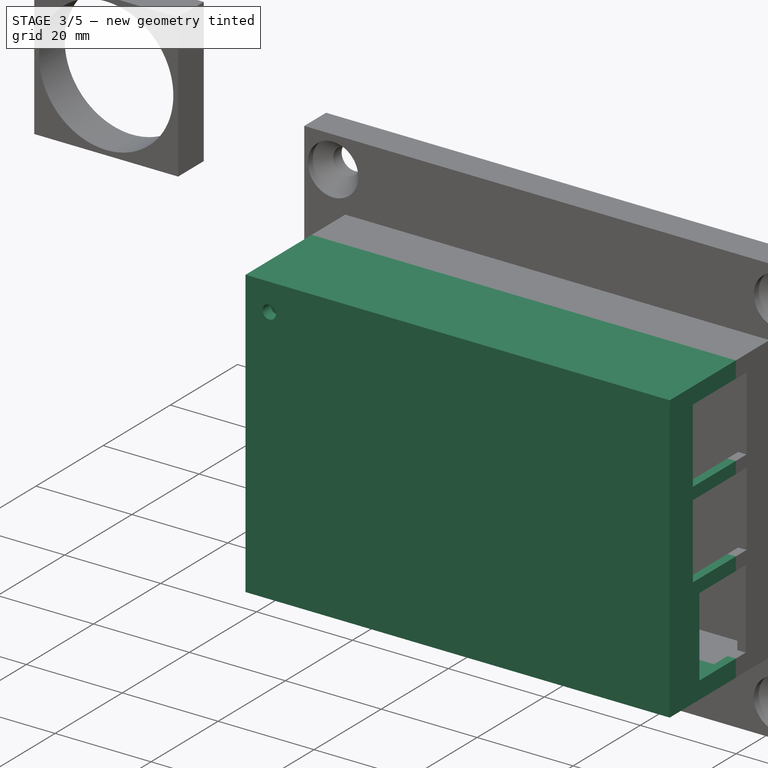
[diagram: stage 3 of 5 — iso view after this stage's code; geometry added in this stage tinted green]
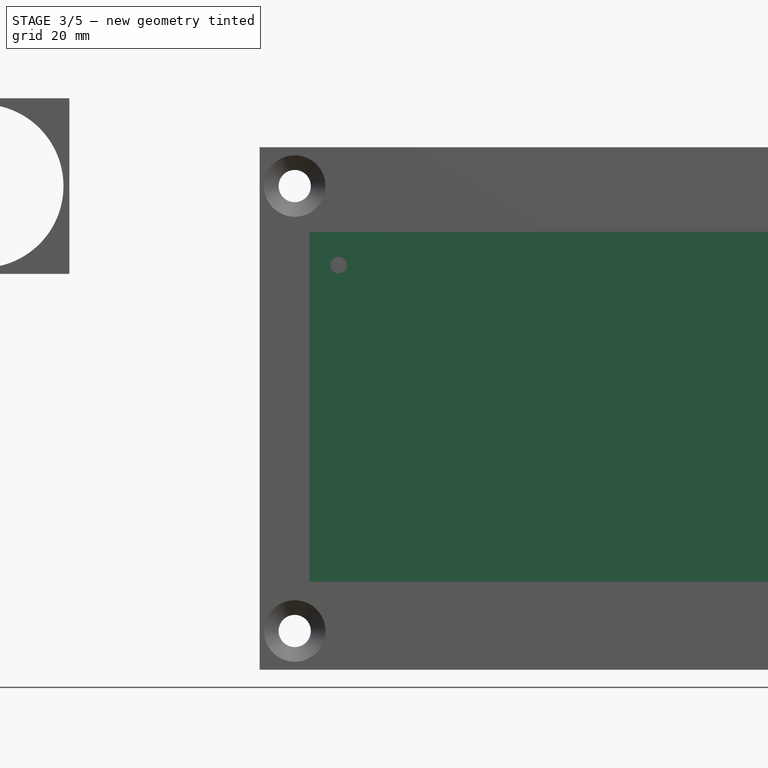
[diagram: stage 3 of 5 — front view after this stage's code; geometry added in this stage tinted green]
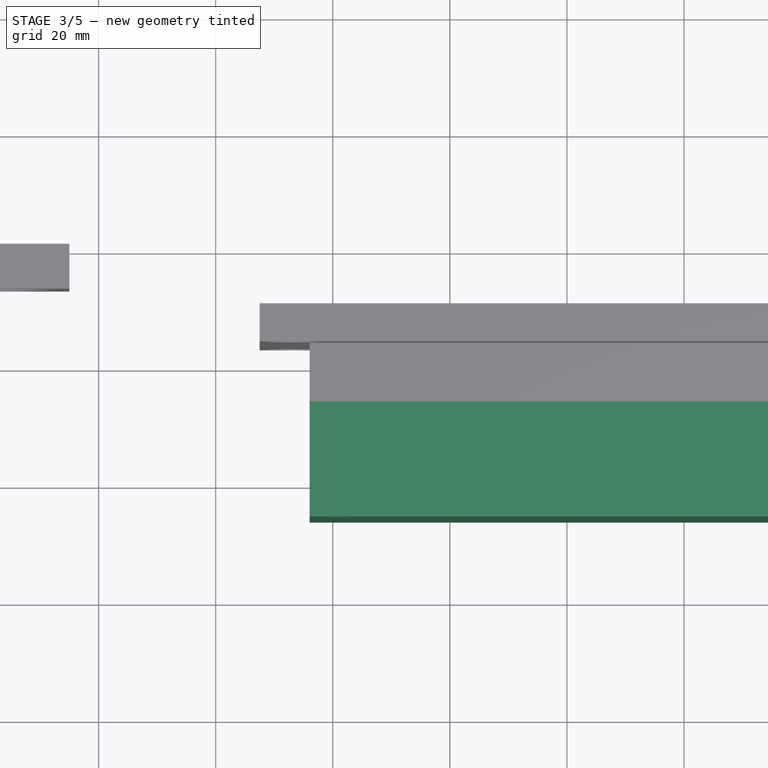
[diagram: stage 3 of 5 — top view after this stage's code; geometry added in this stage tinted green]
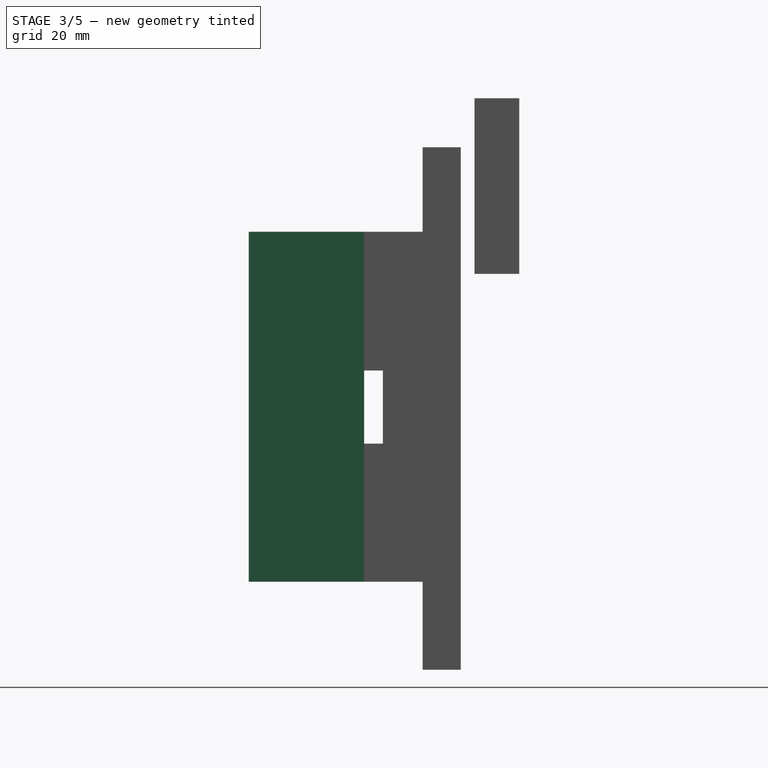
[diagram: stage 3 of 5 — right view after this stage's code; geometry added in this stage tinted green]
FEATURE [Sketcher::SketchObject] Sketch021
  MapMode = 5
  Placement = pos=(0,0,0) rot=(1,0,0;3.14159rad)
  Support = -> [Pad008]
  sketch-geometry (1):
    g0: Circle CenterX=0 CenterY=0 CenterZ=0 NormalX=0 NormalY=0 NormalZ=1 AngleXU=0 Radius=1.25
  constraints (2):
    c: Coincident(g0,g-1)
    c: Diameter(g0) = 2.5
FEATURE [PartDesign::Pad] Pad007
  BaseFeature = -> Pad008
  Length = 6
  Length2 = 100
  Profile = -> Sketch021
  Refine = true
  Type = 0
FEATURE [Sketcher::SketchObject] Sketch023
  MapMode = 5
  Placement = pos=(0,0,20) rot=(0,0,1;0rad)
  Support = -> [Pad007]
  sketch-geometry (1):
    g0: Circle CenterX=0 CenterY=0 CenterZ=0 NormalX=0 NormalY=0 NormalZ=1 AngleXU=0 Radius=1.25
  constraints (2):
    c: Coincident(g0,g-1)
    c: Diameter(g0) = 2.5
FEATURE [PartDesign::Pocket] Pocket013
  BaseFeature = -> Pad007
  Length = 5
  Length2 = 100
  Profile = -> Sketch023
  Refine = true
  Type = 0
FEATURE [PartDesign::Body] Body009  label="m2.5 x 20mm standoff001"
  Group = -> [Sketch022,Pad008,Sketch021,Pad007,Sketch023,Pocket013]
  Origin = -> Origin015
  Placement = pos=(61,-23.8,-13.5) rot=(1,0,0;1.5708rad)
  Tip = -> Pocket013
FEATURE [PartDesign::FeatureBase] Clone004
  BaseFeature = -> Body009
  Placement = pos=(61,-23.8,-13.5) rot=(1,0,0;1.5708rad)
FEATURE [PartDesign::Body] Body010  label="m2.5 x 20mm standoff002"
  BaseFeature = -> Body009
  Group = -> [Clone004]
  Origin = -> Origin016
  Placement = pos=(58,0,0) rot=(0,0,1;0rad)
  Tip = -> Clone004
FEATURE [PartDesign::FeatureBase] Clone005
  BaseFeature = -> Body009
  Placement = pos=(61,-23.8,-13.5) rot=(1,0,0;1.5708rad)
FEATURE [PartDesign::Body] Body011  label="m2.5 x 20mm standoff003"
  BaseFeature = -> Body009
  Group = -> [Clone005]
  Origin = -> Origin017
  Placement = pos=(0,0,-49) rot=(0,0,1;0rad)
  Tip = -> Clone005
FEATURE [PartDesign::FeatureBase] Clone006
  BaseFeature = -> Body009
  Placement = pos=(61,-23.8,-13.5) rot=(1,0,0;1.5708rad)
FEATURE [PartDesign::Body] Body012  label="m2.5 x 20mm standoff004"
  BaseFeature = -> Body009
  Group = -> [Clone006]
  Origin = -> Origin018
  Placement = pos=(58,0,-49) rot=(0,0,1;0rad)
  Tip = -> Clone006
FEATURE [App::Part] Part005  label="L20mm standoffs"
  Group = -> [Body009,Body010,Body011,Body012]
  Origin = -> Origin014
FEATURE [App::Part] Part003  label="harware"
  Group = -> [Part004,Part005]
  Origin = -> Origin006
FEATURE [Sketcher::SketchObject] Sketch024
  ExternalGeometry = -> [ShapeBinder011]
  MapMode = 5
  Placement = pos=(-1.94e-14,-43.8,1.01e-14) rot=(1,0,0;1.5708rad)
  Support = -> [DatumPlane002]
  sketch-geometry (4):
    g0: LineSegment StartX=56.05 StartY=-7.8 StartZ=0 EndX=144.5 EndY=-7.8 EndZ=0
    g1: LineSegment StartX=144.5 StartY=-7.8 StartZ=0 EndX=144.5 EndY=-67.6 EndZ=0
    g2: LineSegment StartX=144.5 StartY=-67.6 StartZ=0 EndX=56.05 EndY=-67.6 EndZ=0
    g3: LineSegment StartX=56.05 StartY=-67.6 StartZ=0 EndX=56.05 EndY=-7.8 EndZ=0
  constraints (10):
    c: Coincident(g0,g1)
    c: Coincident(g1,g2)
    c: Coincident(g2,g3)
    c: Coincident(g3,g0)
    c: Horizontal(g0)
    c: Horizontal(g2)
    c: Vertical(g1)
    c: Vertical(g3)
    c: Coincident(g0,g-3)
    c: Coincident(g1,g-4)
FEATURE [PartDesign::Pad] Pad009
  Length = 2.4
  Length2 = 100
  Placement = pos=(-1.94e-14,-43.8,1.01e-14) rot=(1,0,0;1.5708rad)
  Profile = -> Sketch024
  Refine = true
  Type = 0
FEATURE [Sketcher::SketchObject] Sketch025
  ExternalGeometry = -> [Pad009,ShapeBinder011]
  MapMode = 5
  Placement = pos=(-1.94e-14,-43.8,1.01e-14) rot=(-1,0,0;1.5708rad)
  Support = -> [Pad009]
  sketch-geometry (8):
    g0: LineSegment StartX=56.05 StartY=67.6 StartZ=0 EndX=144.5 EndY=67.6 EndZ=0
    g1: LineSegment StartX=144.5 StartY=67.6 StartZ=0 EndX=144.5 EndY=7.8 EndZ=0
    g2: LineSegment StartX=144.5 StartY=7.8 StartZ=0 EndX=56.05 EndY=7.8 EndZ=0
    g3: LineSegment StartX=56.05 StartY=7.8 StartZ=0 EndX=56.05 EndY=67.6 EndZ=0
    g4: LineSegment StartX=57.25 StartY=66.25 StartZ=0 EndX=142.75 EndY=66.25 EndZ=0
    g5: LineSegment StartX=142.75 StartY=66.25 StartZ=0 EndX=142.75 EndY=9 EndZ=0
    g6: LineSegment StartX=142.75 StartY=9 StartZ=0 EndX=57.25 EndY=9 EndZ=0
    g7: LineSegment StartX=57.25 StartY=9 StartZ=0 EndX=57.25 EndY=66.25 EndZ=0
  constraints (20):
    c: Coincident(g0,g1)
    c: Coincident(g1,g2)
    c: Coincident(g2,g3)
    c: Coincident(g3,g0)
    c: Horizontal(g0)
    c: Horizontal(g2)
    c: Vertical(g1)
    c: Vertical(g3)
    c: Coincident(g0,g-4)
    c: Coincident(g1,g-6)
    c: Coincident(g4,g5)
    c: Coincident(g5,g6)
    c: Coincident(g6,g7)
    c: Coincident(g7,g4)
    c: Horizontal(g4)
    c: Horizontal(g6)
    c: Vertical(g5)
    c: Vertical(g7)
    c: Coincident(g4,g-10)
    c: Coincident(g5,g-9)
FEATURE [PartDesign::Pad] Pad010
  BaseFeature = -> Pad009
  Length = 10
  Length2 = 100
  Placement = pos=(-1.94e-14,-43.8,1.01e-14) rot=(1,0,0;1.5708rad)
  Profile = -> Sketch025
  Refine = true
  Type = 3
  UpToFace = -> ShapeBinder011 [Face1]
FEATURE [PartDesign::ShapeBinder] ShapeBinder012
  Support = -> [Pocket012]
  TraceSupport = true
FEATURE [PartDesign::ShapeBinder] ShapeBinder013
  Placement = pos=(0,-3.5,0) rot=(0,0,1;0rad)
  Support = -> [Part__Feature]
  TraceSupport = true
FEATURE [Sketcher::SketchObject] Sketch026
  ExternalGeometry = -> [Pad010,ShapeBinder013]
  MapMode = 5
  Placement = pos=(144.5,-43.8,1.01e-14) rot=(0.707107,0,0.707107;3.14159rad)
  Support = -> [Pad010]
  sketch-geometry (4):
    g0: LineSegment StartX=-26.75 StartY=-17.3 StartZ=0 EndX=-11.25 EndY=-17.3 EndZ=0
    g1: LineSegment StartX=-11.25 StartY=-17.3 StartZ=0 EndX=-11.25 EndY=-4.5 EndZ=0
    g2: LineSegment StartX=-11.25 StartY=-4.5 StartZ=0 EndX=-26.75 EndY=-4.5 EndZ=0
    g3: LineSegment StartX=-26.75 StartY=-4.5 StartZ=0 EndX=-26.75 EndY=-17.3 EndZ=0
  constraints (12):
    c: Coincident(g0,g1)
    c: Coincident(g1,g2)
    c: Coincident(g2,g3)
    c: Coincident(g3,g0)
    c: Horizontal(g0)
    c: Horizontal(g2)
    c: Vertical(g1)
    c: Vertical(g3)
    c: PointOnObject(g0,g-3)
    c: DistanceY(g-4,g1) = 0.25
    c: DistanceX(g2,g-6) = 0.25
    c: DistanceX(g-5,g1) = 0.25
FEATURE [PartDesign::Pocket] Pocket014
  BaseFeature = -> Pad010
  Length = 5
  Length2 = 100
  Placement = pos=(-1.94e-14,-43.8,1.01e-14) rot=(1,0,0;1.5708rad)
  Profile = -> Sketch026
  Refine = true
  Type = 2
FEATURE [Sketcher::SketchObject] Sketch027
  ExternalGeometry = -> [ShapeBinder013,ShapeBinder012,Pocket014]
  MapMode = 5
  Placement = pos=(144.5,-43.8,1.01e-14) rot=(0.707107,0,0.707107;3.14159rad)
  Support = -> [Pocket014]
  sketch-geometry (4):
    g0: LineSegment StartX=-44.75 StartY=-17.3 StartZ=0 EndX=-29.25 EndY=-17.3 EndZ=0
    g1: LineSegment StartX=-29.25 StartY=-17.3 StartZ=0 EndX=-29.25 EndY=-4.5 EndZ=0
    g2: LineSegment StartX=-29.25 StartY=-4.5 StartZ=0 EndX=-44.75 EndY=-4.5 EndZ=0
    g3: LineSegment StartX=-44.75 StartY=-4.5 StartZ=0 EndX=-44.75 EndY=-17.3 EndZ=0
  constraints (7):
    c: Coincident(g0,g1)
    c: Coincident(g1,g2)
    c: Coincident(g2,g3)
    c: Coincident(g3,g0)
    c: Horizontal(g2)
    c: Vertical(g1)
    c: Vertical(g3)
FEATURE [PartDesign::Pocket] Pocket015
  BaseFeature = -> Pocket014
  Length = 5
  Length2 = 100
  Placement = pos=(-1.94e-14,-43.8,1.01e-14) rot=(1,0,0;1.5708rad)
  Profile = -> Sketch027
  Refine = true
  Type = 2
FEATURE [Sketcher::SketchObject] Sketch028
  ExternalGeometry = -> [Pocket015,ShapeBinder013]
  MapMode = 5
  Placement = pos=(144.5,-43.8,1.01e-14) rot=(0.707107,0,0.707107;3.14159rad)
  Support = -> [Pocket015]
  sketch-geometry (4):
    g0: LineSegment StartX=-64 StartY=-17.3 StartZ=0 EndX=-47.5 EndY=-17.3 EndZ=0
    g1: LineSegment StartX=-47.5 StartY=-17.3 StartZ=0 EndX=-47.5 EndY=-6.45 EndZ=0
    g2: LineSegment StartX=-47.5 StartY=-6.45 StartZ=0 EndX=-64 EndY=-6.45 EndZ=0
    g3: LineSegment StartX=-64 StartY=-6.45 StartZ=0 EndX=-64 EndY=-17.3 EndZ=0
  constraints (12):
    c: Coincident(g0,g1)
    c: Coincident(g1,g2)
    c: Coincident(g2,g3)
    c: Coincident(g3,g0)
    c: Horizontal(g0)
    c: Horizontal(g2)
    c: Vertical(g1)
    c: Vertical(g3)
    c: PointOnObject(g0,g-3)
    c: DistanceX(g2,g-4) = 0.25
    c: DistanceX(g-4,g1) = 0.25
    c: DistanceY(g-4,g1) = 0.25
FEATURE [PartDesign::Pocket] Pocket016
  BaseFeature = -> Pocket015
  Length = 5
  Length2 = 100
  Placement = pos=(-1.94e-14,-43.8,1.01e-14) rot=(1,0,0;1.5708rad)
  Profile = -> Sketch028
  Refine = true
  Type = 2
FEATURE [PartDesign::ShapeBinder] ShapeBinder014
  Placement = pos=(0,-3.5,0) rot=(0,0,1;0rad)
  Support = -> [Part__Feature]
  TraceSupport = true
FEATURE [PartDesign::ShapeBinder] ShapeBinder015
  Support = -> [Pocket012]
  TraceSupport = true
FEATURE [Sketcher::SketchObject] Sketch029
  ExternalGeometry = -> [Pocket016,ShapeBinder015]
  MapMode = 5
  Placement = pos=(-1.94e-14,-43.8,-67.6) rot=(1,0,0;3.14159rad)
  Support = -> [Pocket016]
  sketch-geometry (2):
    g0: ArcOfCircle CenterX=111 CenterY=-17 CenterZ=0 NormalX=0 NormalY=0 NormalZ=1 AngleXU=0 Radius=3.125 StartAngle=6.18704 EndAngle=9.52093
    g1: LineSegment StartX=107.889 StartY=-17.3 StartZ=0 EndX=114.111 EndY=-17.3 EndZ=0
  constraints (2):
    c: Coincident(g1,g0)
    c: Coincident(g1,g0)
FEATURE [PartDesign::Pocket] Pocket017
  BaseFeature = -> Pocket016
  Length = 5
  Length2 = 100
  Placement = pos=(-1.94e-14,-43.8,1.01e-14) rot=(1,0,0;1.5708rad)
  Profile = -> Sketch029
  Refine = true
  Type = 2
FEATURE [Sketcher::SketchObject] Sketch030
  ExternalGeometry = -> [Pocket017,ShapeBinder015,ShapeBinder014]
  MapMode = 5
  Placement = pos=(-1.94e-14,-43.8,-67.6) rot=(1,0,0;3.14159rad)
  Support = -> [Pocket017]
  sketch-geometry (4):
    g0: LineSegment StartX=81.75 StartY=-17.3 StartZ=0 EndX=97.25 EndY=-17.3 EndZ=0
    g1: LineSegment StartX=97.25 StartY=-17.3 StartZ=0 EndX=97.25 EndY=-13.25 EndZ=0
    g2: LineSegment StartX=97.25 StartY=-13.25 StartZ=0 EndX=81.75 EndY=-13.25 EndZ=0
    g3: LineSegment StartX=81.75 StartY=-13.25 StartZ=0 EndX=81.75 EndY=-17.3 EndZ=0
  constraints (7):
    c: Coincident(g0,g1)
    c: Coincident(g1,g2)
    c: Coincident(g2,g3)
    c: Coincident(g3,g0)
    c: Horizontal(g2)
    c: Vertical(g1)
    c: Vertical(g3)
FEATURE [PartDesign::Pocket] Pocket018
  BaseFeature = -> Pocket017
  Length = 5
  Length2 = 100
  Placement = pos=(-1.94e-14,-43.8,1.01e-14) rot=(1,0,0;1.5708rad)
  Profile = -> Sketch030
  Refine = true
  Type = 2
FEATURE [PartDesign::ShapeBinder] ShapeBinder016
  Placement = pos=(61,-23.8,-13.5) rot=(1,0,0;1.5708rad)
  Support = -> [Pocket013,Clone005,Clone004,Clone006]
  TraceSupport = true
FEATURE [Sketcher::SketchObject] Sketch031
  ExternalGeometry = -> [ShapeBinder016]
  MapMode = 5
  Placement = pos=(-1.94e-14,-43.8,1.01e-14) rot=(-1,0,0;1.5708rad)
  Support = -> [Pocket018]
  sketch-geometry (1):
    g0: Circle CenterX=61 CenterY=13.5 CenterZ=0 NormalX=0 NormalY=0 NormalZ=1 AngleXU=0 Radius=1.4
  constraints (1):
    c: Diameter(g0) = 2.8
FEATURE [PartDesign::Pocket] Pocket019
  BaseFeature = -> Pocket018
  Length = 5
  Length2 = 100
  Placement = pos=(-1.94e-14,-43.8,1.01e-14) rot=(1,0,0;1.5708rad)
  Profile = -> Sketch031
  Refine = true
  Type = 1
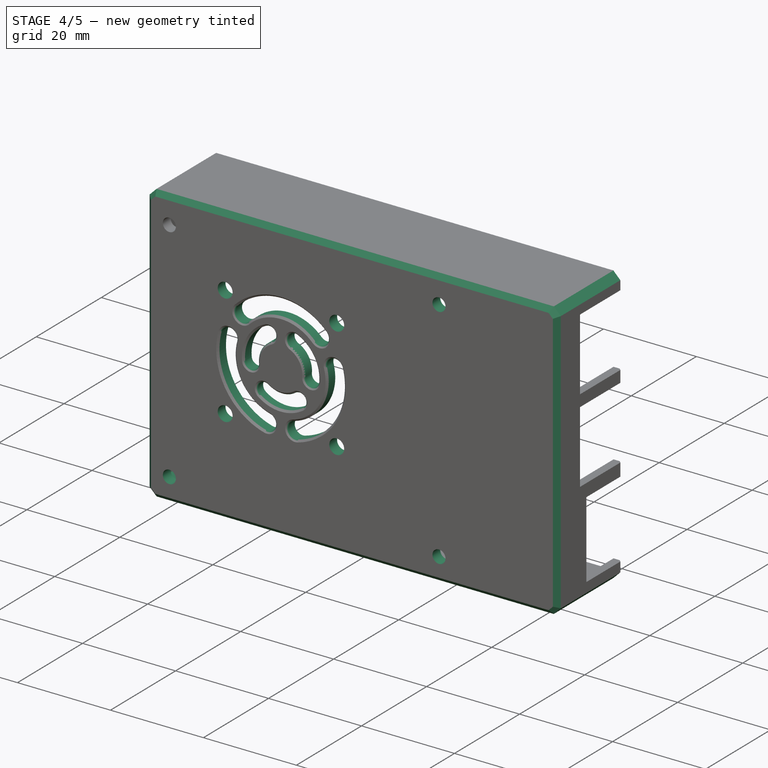
[diagram: stage 4 of 5 — iso view after this stage's code; geometry added in this stage tinted green]
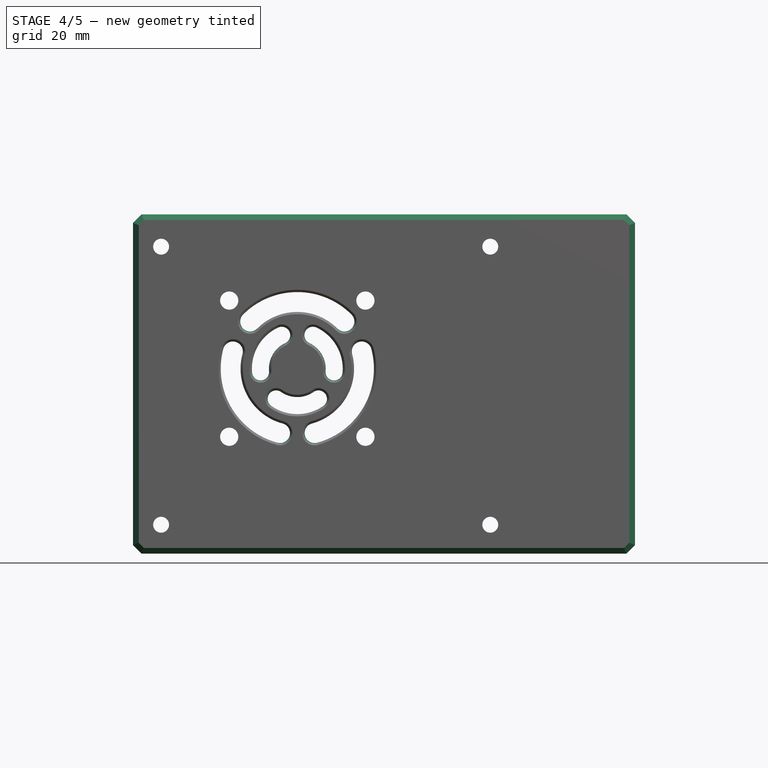
[diagram: stage 4 of 5 — front view after this stage's code; geometry added in this stage tinted green]
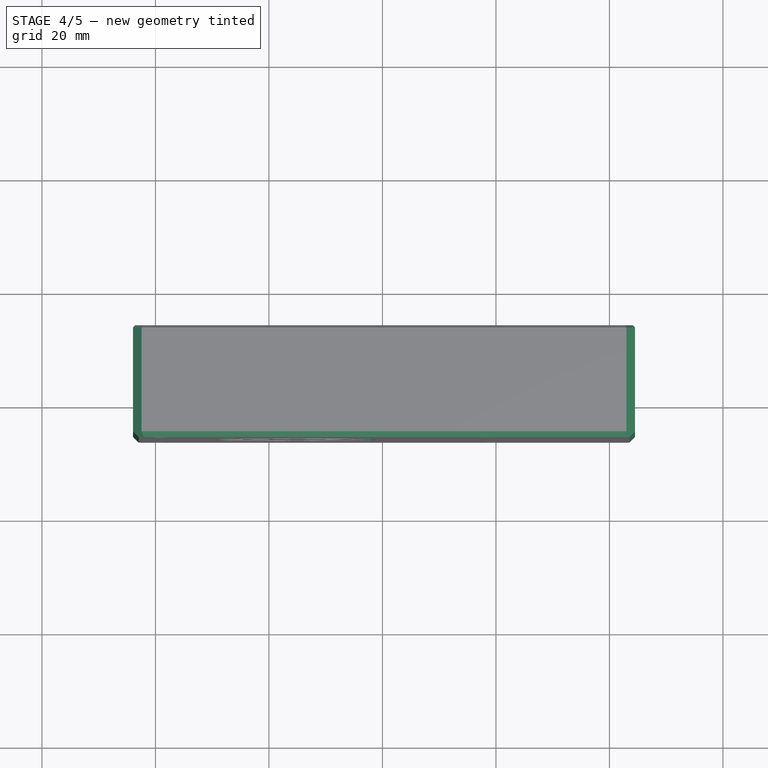
[diagram: stage 4 of 5 — top view after this stage's code; geometry added in this stage tinted green]
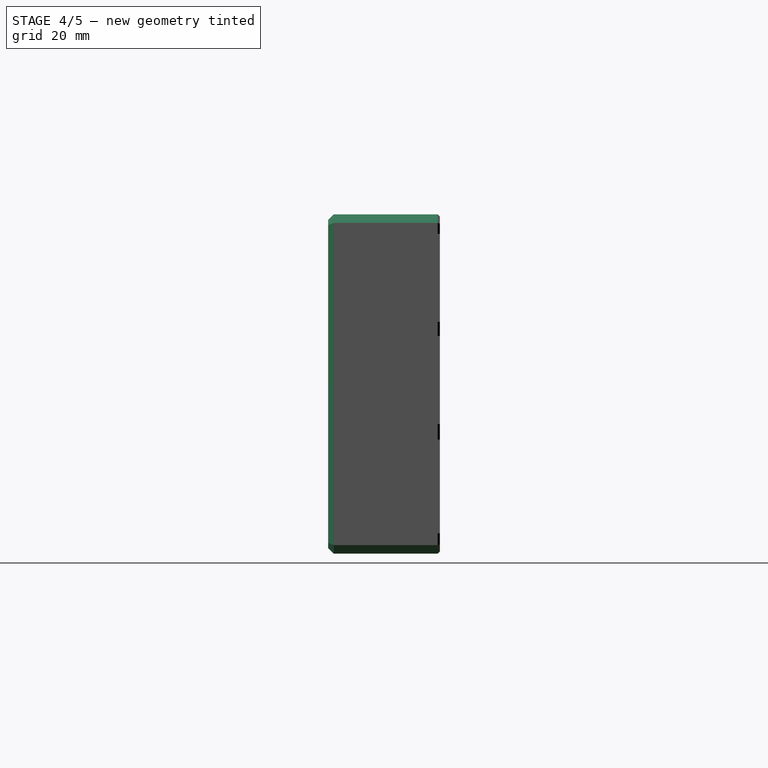
[diagram: stage 4 of 5 — right view after this stage's code; geometry added in this stage tinted green]
FEATURE [PartDesign::LinearPattern] LinearPattern004
  Direction = -> Sketch031 [H_Axis]
  Length = 58
  Occurrences = 2
  Placement = pos=(-1.94e-14,-43.8,1.01e-14) rot=(1,0,0;1.5708rad)
  Refine = true
FEATURE [PartDesign::LinearPattern] LinearPattern005
  Direction = -> Sketch031 [V_Axis]
  Length = 49
  Occurrences = 2
  Placement = pos=(-1.94e-14,-43.8,1.01e-14) rot=(1,0,0;1.5708rad)
  Refine = true
FEATURE [PartDesign::MultiTransform] MultiTransform004
  BaseFeature = -> Pocket019
  Originals = -> [Pocket019]
  Placement = pos=(-1.94e-14,-43.8,1.01e-14) rot=(1,0,0;1.5708rad)
  Refine = true
  Transformations = -> [LinearPattern004,LinearPattern005]
FEATURE [PartDesign::ShapeBinder] ShapeBinder017
  Placement = pos=(85,-36.15,-35) rot=(0,0,1;0rad)
  Support = -> [Pad006]
  TraceSupport = true
FEATURE [Sketcher::SketchObject] Sketch032
  ExternalGeometry = -> [ShapeBinder017]
  MapMode = 5
  Placement = pos=(-2.03e-14,-46.2,1.28e-14) rot=(1,0,0;1.5708rad)
  Support = -> [MultiTransform004]
  sketch-geometry (1):
    g0: Circle CenterX=73 CenterY=-23 CenterZ=0 NormalX=0 NormalY=0 NormalZ=1 AngleXU=0 Radius=1.6
  constraints (3):
    c: Diameter(g0) = 3.2
    c: DistanceX(g0,g-3) = 12
    c: DistanceY(g-3,g0) = 12
FEATURE [PartDesign::Pocket] Pocket020
  BaseFeature = -> MultiTransform004
  Length = 5
  Length2 = 100
  Placement = pos=(-1.94e-14,-43.8,1.01e-14) rot=(1,0,0;1.5708rad)
  Profile = -> Sketch032
  Refine = true
  Type = 1
FEATURE [PartDesign::LinearPattern] LinearPattern006
  Direction = -> Sketch032 [H_Axis]
  Length = 24
  Occurrences = 2
  Placement = pos=(-1.94e-14,-43.8,1.01e-14) rot=(1,0,0;1.5708rad)
  Refine = true
FEATURE [PartDesign::LinearPattern] LinearPattern007
  Direction = -> Sketch032 [V_Axis]
  Length = 24
  Occurrences = 2
  Placement = pos=(-1.94e-14,-43.8,1.01e-14) rot=(1,0,0;1.5708rad)
  Refine = true
  Reversed = true
FEATURE [PartDesign::MultiTransform] MultiTransform005
  BaseFeature = -> Pocket020
  Originals = -> [Pocket020]
  Placement = pos=(-1.94e-14,-43.8,1.01e-14) rot=(1,0,0;1.5708rad)
  Refine = true
  Transformations = -> [LinearPattern006,LinearPattern007]
FEATURE [Sketcher::SketchObject] Sketch033
  ExternalGeometry = -> [ShapeBinder017]
  MapMode = 5
  Placement = pos=(-2.03e-14,-46.2,1.31e-14) rot=(1,0,0;1.5708rad)
  Support = -> [MultiTransform005]
  sketch-geometry (7):
    g0: ArcOfCircle CenterX=76.6915 CenterY=-26.6915 CenterZ=0 NormalX=0 NormalY=0 NormalZ=1 AngleXU=0 Radius=1.75 StartAngle=2.35619 EndAngle=5.49779
    g1: ArcOfCircle CenterX=93.3085 CenterY=-26.6915 CenterZ=0 NormalX=0 NormalY=0 NormalZ=1 AngleXU=0 Radius=1.75 StartAngle=3.92699 EndAngle=7.06858
    g2: ArcOfCircle CenterX=85 CenterY=-35 CenterZ=0 NormalX=0 NormalY=0 NormalZ=1 AngleXU=0 Radius=10 StartAngle=0.785398 EndAngle=2.35619
    g3: ArcOfCircle CenterX=85 CenterY=-35 CenterZ=0 NormalX=0 NormalY=0 NormalZ=1 AngleXU=0 Radius=13.5 StartAngle=0.785398 EndAngle=2.35619
    g4: LineSegment [constr] StartX=94.5459 StartY=-25.4541 StartZ=0 EndX=85 EndY=-35 EndZ=0
    g5: LineSegment [constr] StartX=75.4541 StartY=-25.4541 StartZ=0 EndX=85 EndY=-35 EndZ=0
    g6: LineSegment [constr] StartX=85 StartY=-35 StartZ=0 EndX=99 EndY=-35 EndZ=0
  constraints (21):
    c: Coincident(g2,g-3)
    c: Coincident(g2,g1)
    c: Coincident(g2,g0)
    c: Coincident(g3,g2)
    c: Coincident(g3,g1)
    c: Coincident(g3,g0)
    c: Coincident(g4,g1)
    c: Coincident(g4,g2)
    c: Coincident(g5,g0)
    c: Coincident(g5,g2)
    c: PointOnObject(g0,g5)
    c: PointOnObject(g0,g5)
    c: PointOnObject(g1,g4)
    c: PointOnObject(g1,g4)
    c: Radius(g3) = 13.5
    c: Radius(g2) = 10
    c: Coincident(g6,g2)
    c: PointOnObject(g6,g-3)
    c: Horizontal(g6)
    c: Angle(g6,g4) = 0.785398
    c: Perpendicular(g5,g4)
FEATURE [PartDesign::Pocket] Pocket021
  BaseFeature = -> MultiTransform005
  Length = 5
  Length2 = 100
  Placement = pos=(-1.94e-14,-43.8,1.01e-14) rot=(1,0,0;1.5708rad)
  Profile = -> Sketch033
  Refine = true
  Type = 1
FEATURE [PartDesign::Line] DatumLine
  AttacherType = Attacher::AttachEngineLine
  MapMode = 19
  Placement = pos=(85,-36.15,-35) rot=(1,0,0;1.5708rad)
  Support = -> [ShapeBinder017]
FEATURE [PartDesign::PolarPattern] PolarPattern001
  Angle = 360
  Axis = -> DatumLine
  BaseFeature = -> Pocket021
  Occurrences = 3
  Originals = -> [Pocket021]
  Placement = pos=(-1.94e-14,-43.8,1.01e-14) rot=(1,0,0;1.5708rad)
  Refine = true
FEATURE [Sketcher::SketchObject] Sketch034
  ExternalGeometry = -> [ShapeBinder017]
  MapMode = 5
  Placement = pos=(-2.03e-14,-46.2,1.34e-14) rot=(1,0,0;1.5708rad)
  Support = -> [PolarPattern001]
  sketch-geometry (8):
    g0: ArcOfCircle CenterX=88.7282 CenterY=-40.3245 CenterZ=0 NormalX=0 NormalY=0 NormalZ=1 AngleXU=0 Radius=1.5 StartAngle=5.32325 EndAngle=8.46485
    g1: ArcOfCircle CenterX=81.2718 CenterY=-40.3245 CenterZ=0 NormalX=0 NormalY=0 NormalZ=1 AngleXU=0 Radius=1.5 StartAngle=0.959931 EndAngle=4.10152
    g2: ArcOfCircle CenterX=85 CenterY=-35 CenterZ=0 NormalX=0 NormalY=0 NormalZ=1 AngleXU=0 Radius=5 StartAngle=4.10152 EndAngle=5.32325
    g3: ArcOfCircle CenterX=85 CenterY=-35 CenterZ=0 NormalX=0 NormalY=0 NormalZ=1 AngleXU=0 Radius=8 StartAngle=4.10152 EndAngle=5.32325
    g4: LineSegment [constr] StartX=85 StartY=-35 StartZ=0 EndX=80.4114 EndY=-41.5532 EndZ=0
    g5: LineSegment [constr] StartX=85 StartY=-35 StartZ=0 EndX=89.5886 EndY=-41.5532 EndZ=0
    g6: LineSegment [constr] StartX=85 StartY=-35 StartZ=0 EndX=99 EndY=-35 EndZ=0
    g7: LineSegment [constr] StartX=85 StartY=-35 StartZ=0 EndX=71 EndY=-35 EndZ=0
  constraints (24):
    c: Coincident(g2,g-3)
    c: Coincident(g2,g0)
    c: Coincident(g3,g2)
    c: Coincident(g3,g0)
    c: Coincident(g3,g1)
    c: Coincident(g2,g1)
    c: Coincident(g4,g2)
    c: Coincident(g5,g2)
    c: Coincident(g0,g5)
    c: Coincident(g4,g1)
    c: PointOnObject(g0,g5)
    c: PointOnObject(g0,g5)
    c: PointOnObject(g1,g4)
    c: PointOnObject(g1,g4)
    c: Radius(g3) = 8
    c: Radius(g2) = 5
    c: Coincident(g6,g2)
    c: PointOnObject(g6,g-3)
    c: Horizontal(g6)
    c: Angle(g5,g6) = 0.959931
    c: Coincident(g7,g2)
    c: PointOnObject(g7,g-3)
    c: Horizontal(g7)
    c: Angle(g7,g4) = 0.959931
FEATURE [PartDesign::Pocket] Pocket022
  BaseFeature = -> PolarPattern001
  Length = 5
  Length2 = 100
  Placement = pos=(-1.94e-14,-43.8,1.01e-14) rot=(1,0,0;1.5708rad)
  Profile = -> Sketch034
  Refine = true
  Type = 1
FEATURE [PartDesign::PolarPattern] PolarPattern002
  Angle = 360
  Axis = -> DatumLine
  BaseFeature = -> Pocket022
  Occurrences = 3
  Originals = -> [Pocket022]
  Placement = pos=(-1.94e-14,-43.8,1.01e-14) rot=(1,0,0;1.5708rad)
  Refine = true
FEATURE [PartDesign::ShapeBinder] ShapeBinder018
  Support = -> [Pocket024]
  TraceSupport = true
FEATURE [Sketcher::SketchObject] Sketch037
  ExternalGeometry = -> [ShapeBinder018]
  MapMode = 5
  Placement = pos=(-1.94e-14,-43.8,-67.6) rot=(1,0,0;3.14159rad)
  Support = -> [PolarPattern002]
  sketch-geometry (4):
    g0: LineSegment StartX=56.05 StartY=-23.4 StartZ=0 EndX=56.05 EndY=-23.4 EndZ=0
    g1: LineSegment StartX=56.05 StartY=-23.4 StartZ=0 EndX=56.05 EndY=-21.15 EndZ=0
    g2: LineSegment StartX=56.05 StartY=-21.15 StartZ=0 EndX=56.05 EndY=-21.15 EndZ=0
    g3: LineSegment StartX=56.05 StartY=-21.15 StartZ=0 EndX=56.05 EndY=-23.4 EndZ=0
  constraints (8):
    c: Coincident(g0,g1)
    c: Coincident(g1,g2)
    c: Coincident(g2,g3)
    c: Coincident(g3,g0)
    c: Horizontal(g2)
    c: Vertical(g1)
    c: Vertical(g3)
    c: DistanceY(g1,g1) = 2.25
FEATURE [PartDesign::Pocket] Pocket025
  BaseFeature = -> PolarPattern002
  Length = 0.5
  Length2 = 100
  Placement = pos=(-1.94e-14,-43.8,1.01e-14) rot=(1,0,0;1.5708rad)
  Profile = -> Sketch037
  Refine = true
  Type = 0
FEATURE [Sketcher::SketchObject] Sketch038
  ExternalGeometry = -> [ShapeBinder018,Pocket025]
  MapMode = 5
  Placement = pos=(-1.94e-14,-43.8,-67.6) rot=(1,0,0;3.14159rad)
  Support = -> [Pocket025]
  sketch-geometry (4):
    g0: LineSegment StartX=79.75 StartY=-17.3 StartZ=0 EndX=99.25 EndY=-17.3 EndZ=0
    g1: LineSegment StartX=99.25 StartY=-17.3 StartZ=0 EndX=99.25 EndY=-11.25 EndZ=0
    g2: LineSegment StartX=99.25 StartY=-11.25 StartZ=0 EndX=79.75 EndY=-11.25 EndZ=0
    g3: LineSegment StartX=79.75 StartY=-11.25 StartZ=0 EndX=79.75 EndY=-17.3 EndZ=0
  constraints (7):
    c: Coincident(g0,g1)
    c: Coincident(g1,g2)
    c: Coincident(g2,g3)
    c: Coincident(g3,g0)
    c: Horizontal(g2)
    c: Vertical(g1)
    c: Vertical(g3)
FEATURE [PartDesign::Pocket] Pocket026
  BaseFeature = -> Pocket025
  Length = 0.5
  Length2 = 100
  Placement = pos=(-1.94e-14,-43.8,1.01e-14) rot=(1,0,0;1.5708rad)
  Profile = -> Sketch038
  Refine = true
  Type = 0
FEATURE [PartDesign::Chamfer] Chamfer004
  Base = -> Pocket026 [Edge40,Edge54,Edge38,Edge37,Edge183,Edge184,Edge185,Edge180]
  BaseFeature = -> Pocket026
  Placement = pos=(-1.94e-14,-43.8,1.01e-14) rot=(1,0,0;1.5708rad)
  Size = 1.5
FEATURE [PartDesign::Chamfer] Chamfer005
  Base = -> Chamfer004 [Edge72,Edge66,Edge50,Edge56,Edge63,Edge55,Edge46,Edge43,Edge76,Edge73,Edge68,Edge65,Edge49,Edge45]
  BaseFeature = -> Chamfer004
  Placement = pos=(-1.94e-14,-43.8,1.01e-14) rot=(1,0,0;1.5708rad)
  Size = 0.4
FEATURE [PartDesign::Body] Body002  label="base"
  Group = -> [ShapeBinder,ShapeBinder001,ShapeBinder002,Sketch003,Pad001,DatumPlane,DatumPlane001,Sketch004,Pocket002,MultiTransform,Mirrored,Mirrored001,Sketch005,Hole,MultiTransform001,Mirrored002,Mirrored003,Sketch006,Pocket003,Sketch010,Pocket005,MultiTransform002,LinearPattern,LinearPattern001,Sketch011,Pad004,MultiTransform003,LinearPattern002,LinearPattern003,Chamfer,ShapeBinder003,Sketch012,Pad005,+33 more]
  Origin = -> Origin005
  Tip = -> Chamfer007
FEATURE [PartDesign::Chamfer] Chamfer008
  Base = -> Chamfer005 [Edge6,Edge3,Edge12,Edge14,Edge16,Edge15,Edge13,Edge11]
  BaseFeature = -> Chamfer005
  Placement = pos=(-1.94e-14,-43.8,1.01e-14) rot=(1,0,0;1.5708rad)
  Size = 1
FEATURE [PartDesign::Chamfer] Chamfer009
  Base = -> Chamfer008 [Edge32,Edge34,Edge35,Edge33,Edge58,Edge59,Edge57,Edge56,Edge49,Edge50,Edge48,Edge47,Edge36,Edge38,Edge37,Edge39,Edge52,Edge54,Face42,Edge51,Edge53,Edge41,Edge40,Edge42,Edge43]
  BaseFeature = -> Chamfer008
  Placement = pos=(-1.94e-14,-43.8,1.01e-14) rot=(1,0,0;1.5708rad)
  Size = 0.4
FEATURE [Sketcher::SketchObject] Sketch040
  ExternalGeometry = -> [ShapeBinder014,Chamfer009]
  MapMode = 5
  Placement = pos=(-1.94e-14,-43.8,-67.6) rot=(1,0,0;3.14159rad)
  Support = -> [Chamfer009]
  sketch-geometry (4):
    g0: LineSegment StartX=64.1 StartY=-17.3 StartZ=0 EndX=72.1 EndY=-17.3 EndZ=0
    g1: LineSegment StartX=72.1 StartY=-17.3 StartZ=0 EndX=72.1 EndY=-17 EndZ=0
    g2: LineSegment StartX=72.1 StartY=-17 StartZ=0 EndX=64.1 EndY=-17 EndZ=0
    g3: LineSegment StartX=64.1 StartY=-17 StartZ=0 EndX=64.1 EndY=-17.3 EndZ=0
  constraints (12):
    c: Coincident(g0,g1)
    c: Coincident(g1,g2)
    c: Coincident(g2,g3)
    c: Coincident(g3,g0)
    c: Horizontal(g0)
    c: Horizontal(g2)
    c: Vertical(g1)
    c: Vertical(g3)
    c: PointOnObject(g0,g-4)
    c: DistanceX(g-3,g0) = 0.25
    c: DistanceX(g0,g-3) = 0.25
    c: DistanceY(g-3,g1) = 0.5
FEATURE [PartDesign::Pocket] Pocket028
  BaseFeature = -> Chamfer009
  Length = 5
  Length2 = 100
  Placement = pos=(-1.94e-14,-43.8,1.01e-14) rot=(1,0,0;1.5708rad)
  Profile = -> Sketch040
  Refine = true
  Type = 0
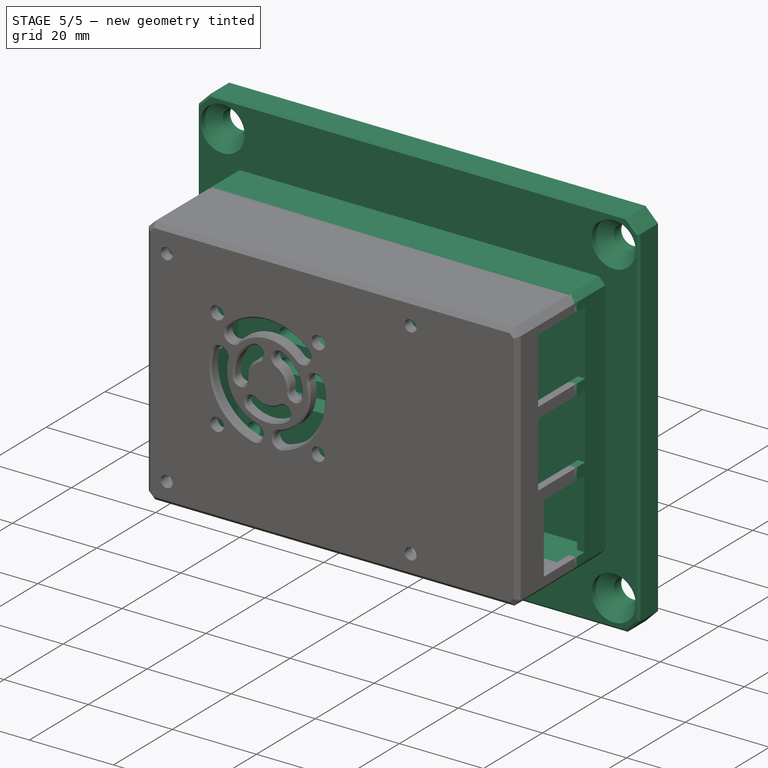
[diagram: stage 5 of 5 — iso view after this stage's code; geometry added in this stage tinted green]
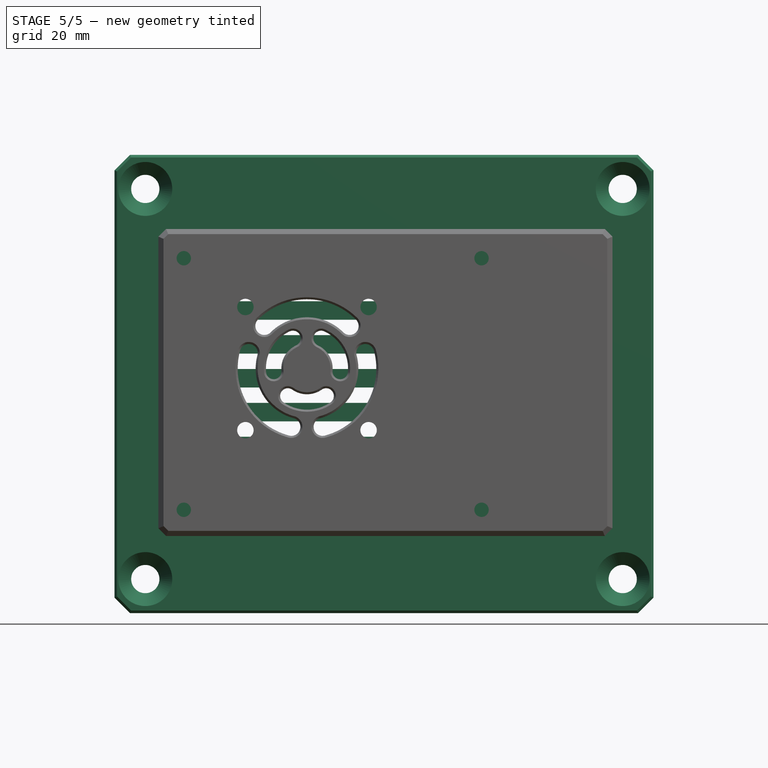
[diagram: stage 5 of 5 — front view after this stage's code; geometry added in this stage tinted green]
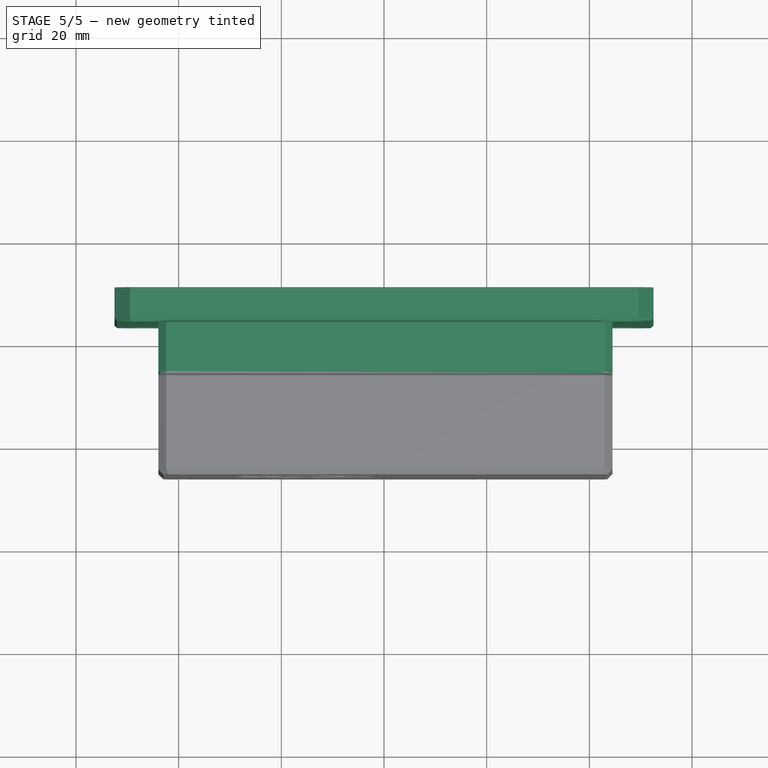
[diagram: stage 5 of 5 — top view after this stage's code; geometry added in this stage tinted green]
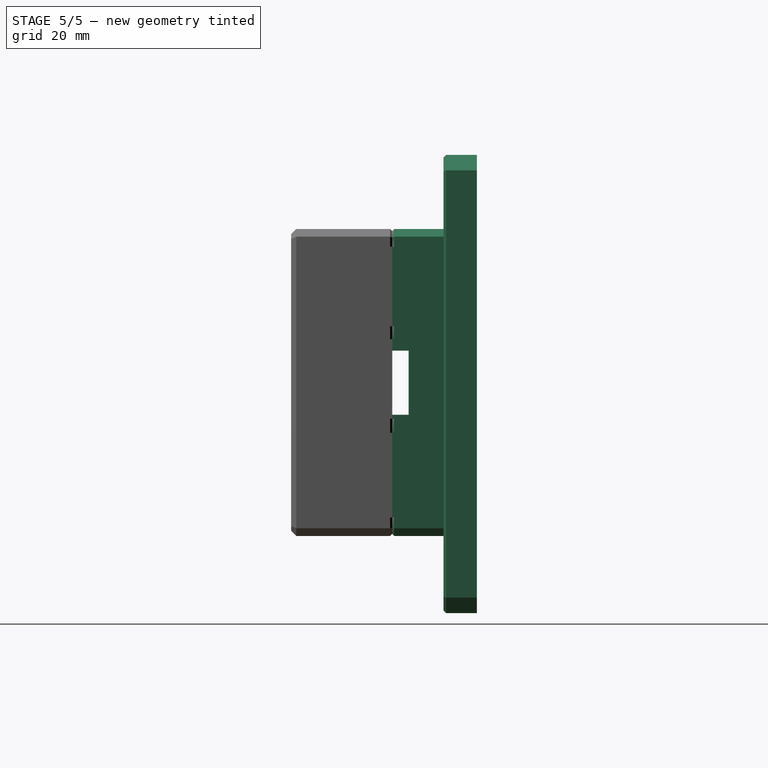
[diagram: stage 5 of 5 — right view after this stage's code; geometry added in this stage tinted green]
FEATURE [Sketcher::SketchObject] Sketch007
  MapMode = 5
  Support = -> [XY_Plane007]
  sketch-geometry (7):
    g0: LineSegment StartX=1.37121 StartY=2.375 StartZ=0 EndX=-1.37121 EndY=2.375 EndZ=0
    g1: LineSegment StartX=-1.37121 StartY=2.375 StartZ=0 EndX=-2.74241 EndY=-4e-16 EndZ=0
    g2: LineSegment StartX=-2.74241 StartY=-4e-16 StartZ=0 EndX=-1.37121 EndY=-2.375 EndZ=0
    g3: LineSegment StartX=-1.37121 StartY=-2.375 StartZ=0 EndX=1.37121 EndY=-2.375 EndZ=0
    g4: LineSegment StartX=1.37121 StartY=-2.375 StartZ=0 EndX=2.74241 EndY=0 EndZ=0
    g5: LineSegment StartX=2.74241 StartY=-1e-16 StartZ=0 EndX=1.37121 EndY=2.375 EndZ=0
    g6: Circle [constr] CenterX=0 CenterY=0 CenterZ=0 NormalX=0 NormalY=0 NormalZ=1 AngleXU=0 Radius=2.74241
  constraints (16):
    c: Coincident(g0,g1)
    c: Coincident(g1,g2)
    c: Coincident(g2,g3)
    c: Coincident(g3,g4)
    c: Coincident(g4,g5)
    c: Coincident(g5,g0)
    c: Equal(g0, g1-g5) x5
    c: PointOnObject(g0,g6)
    c: PointOnObject(g1,g6)
    c: PointOnObject(g2,g6)
    c: PointOnObject(g3,g6)
    c: PointOnObject(g4,g6)
    c: PointOnObject(g5,g6)
    c: Coincident(g6,g-1)
    c: Horizontal(g0)
    c: DistanceY(g3,g0) = 4.75
FEATURE [PartDesign::Pad] Pad002
  Length = 6
  Length2 = 100
  Profile = -> Sketch007
  Refine = true
  Type = 0
FEATURE [Sketcher::SketchObject] Sketch008
  MapMode = 5
  Placement = pos=(0,0,0) rot=(1,0,0;3.14159rad)
  Support = -> [Pad002]
  sketch-geometry (1):
    g0: Circle CenterX=0 CenterY=0 CenterZ=0 NormalX=0 NormalY=0 NormalZ=1 AngleXU=0 Radius=1.25
  constraints (2):
    c: Coincident(g0,g-1)
    c: Diameter(g0) = 2.5
FEATURE [PartDesign::Pad] Pad003
  BaseFeature = -> Pad002
  Length = 6
  Length2 = 100
  Profile = -> Sketch008
  Refine = true
  Type = 0
FEATURE [Sketcher::SketchObject] Sketch009
  MapMode = 5
  Placement = pos=(0,0,6) rot=(0,0,1;0rad)
  Support = -> [Pad003]
  sketch-geometry (1):
    g0: Circle CenterX=0 CenterY=0 CenterZ=0 NormalX=0 NormalY=0 NormalZ=1 AngleXU=0 Radius=1.25
  constraints (2):
    c: Coincident(g0,g-1)
    c: Diameter(g0) = 2.5
FEATURE [PartDesign::Pocket] Pocket004
  BaseFeature = -> Pad003
  Length = 5
  Length2 = 100
  Profile = -> Sketch009
  Refine = true
  Type = 0
FEATURE [PartDesign::Body] Body003  label="m2.5 x 6mm standoff002"
  Group = -> [Sketch007,Pad002,Sketch008,Pad003,Sketch009,Pocket004]
  Origin = -> Origin007
  Placement = pos=(61,-16.5,-13.5) rot=(1,0,0;1.5708rad)
  Tip = -> Pocket004
FEATURE [PartDesign::FeatureBase] Clone001
  BaseFeature = -> Body003
  Placement = pos=(61,-16.5,-13.5) rot=(1,0,0;1.5708rad)
FEATURE [PartDesign::Body] Body004  label="m2.5 x 6mm standoff003"
  BaseFeature = -> Body003
  Group = -> [Clone001]
  Origin = -> Origin008
  Placement = pos=(58,0,0) rot=(0,0,1;0rad)
  Tip = -> Clone001
FEATURE [PartDesign::FeatureBase] Clone002
  BaseFeature = -> Body003
  Placement = pos=(61,-16.5,-13.5) rot=(1,0,0;1.5708rad)
FEATURE [PartDesign::Body] Body005  label="m2.5 x 6mm standoff004"
  BaseFeature = -> Body003
  Group = -> [Clone002]
  Origin = -> Origin010
  Placement = pos=(0,0,-49) rot=(0,0,1;0rad)
  Tip = -> Clone002
FEATURE [PartDesign::FeatureBase] Clone003
  BaseFeature = -> Body003
  Placement = pos=(61,-16.5,-13.5) rot=(1,0,0;1.5708rad)
FEATURE [PartDesign::Chamfer] Chamfer001
  Base = -> Pocket024 [Edge184,Edge167,Edge169,Edge170,Edge268,Edge271,Edge273,Edge269]
  BaseFeature = -> Pocket024
  Size = 1.5
FEATURE [PartDesign::Chamfer] Chamfer002
  Base = -> Chamfer001 [Edge21,Edge19,Edge23,Edge31,Edge39,Edge40,Edge32,Edge47,Edge48,Edge52,Edge57,Edge49,Edge45,Edge25,Edge26]
  BaseFeature = -> Chamfer001
  Size = 0.4
FEATURE [PartDesign::Chamfer] Chamfer003
  Base = -> Chamfer002 [Edge78,Edge75,Edge80,Edge76]
  BaseFeature = -> Chamfer002
  Size = 3
FEATURE [Sketcher::SketchObject] Sketch039
  ExternalGeometry = -> [Chamfer003]
  MapMode = 5
  Placement = pos=(-4.4e-15,-10,2.2e-15) rot=(0,0.707107,0.707107;3.14159rad)
  Support = -> [Chamfer003]
  sketch-geometry (4):
    g0: ArcOfCircle CenterX=-111.5 CenterY=-20.375 CenterZ=0 NormalX=0 NormalY=0 NormalZ=1 AngleXU=0 Radius=1.5 StartAngle=1.5708 EndAngle=4.71239
    g1: ArcOfCircle CenterX=-68.5 CenterY=-20.375 CenterZ=0 NormalX=0 NormalY=0 NormalZ=1 AngleXU=0 Radius=1.5 StartAngle=4.71239 EndAngle=7.85398
    g2: LineSegment StartX=-111.5 StartY=-21.875 StartZ=0 EndX=-68.5 EndY=-21.875 EndZ=0
    g3: LineSegment StartX=-111.5 StartY=-18.875 StartZ=0 EndX=-68.5 EndY=-18.875 EndZ=0
  constraints (10):
    c: Tangent(g0,g3) = 1.5708
    c: Tangent(g0,g2) = -1.5708
    c: Tangent(g2,g1) = -1.5708
    c: Tangent(g3,g1) = 1.5708
    c: Horizontal(g2)
    c: Equal(g0,g1)
    c: Diameter(g1) = 3
    c: DistanceX(g0,g1) = 43
    c: DistanceX(g1,g-3) = 21
    c: DistanceY(g1,g-3) = 24
FEATURE [PartDesign::Pocket] Pocket027
  BaseFeature = -> Chamfer003
  Length = 5
  Length2 = 100
  Profile = -> Sketch039
  Refine = true
  Type = 1
FEATURE [PartDesign::LinearPattern] LinearPattern008
  BaseFeature = -> Pocket027
  Direction = -> Sketch039 [V_Axis]
  Length = 33
  Occurrences = 6
  Originals = -> [Pocket027]
  Refine = true
  Reversed = true
FEATURE [PartDesign::Chamfer] Chamfer006
  Base = -> LinearPattern008 [Edge99,Edge100,Edge101,Edge98,Edge102,Edge103,Edge104,Edge105,Edge109,Edge107,Edge106,Edge108,Edge118,Edge117,Edge119,Edge120,Edge124,Edge122,Edge121,Edge123,Edge128,Edge127,Edge126,Edge125]
  BaseFeature = -> LinearPattern008
  Size = 0.5
FEATURE [PartDesign::Chamfer] Chamfer007
  Base = -> Chamfer006 [Edge71,Edge73,Edge75,Edge79,Edge83,Edge84,Edge81,Edge77]
  BaseFeature = -> Chamfer006
  Size = 0.5
FEATURE [Sketcher::SketchObject] Sketch041
  ExternalGeometry = -> [Pocket028]
  MapMode = 5
  Placement = pos=(-1.94e-14,-43.8,-67.6) rot=(1,0,0;3.14159rad)
  Support = -> [Pocket028]
  sketch-geometry (4):
    g0: LineSegment StartX=62.1 StartY=-17.3 StartZ=0 EndX=74.1 EndY=-17.3 EndZ=0
    g1: LineSegment StartX=74.1 StartY=-17.3 StartZ=0 EndX=74.1 EndY=-15 EndZ=0
    g2: LineSegment StartX=74.1 StartY=-15 StartZ=0 EndX=62.1 EndY=-15 EndZ=0
    g3: LineSegment StartX=62.1 StartY=-15 StartZ=0 EndX=62.1 EndY=-17.3 EndZ=0
  constraints (12):
    c: Coincident(g0,g1)
    c: Coincident(g1,g2)
    c: Coincident(g2,g3)
    c: Coincident(g3,g0)
    c: Horizontal(g0)
    c: Horizontal(g2)
    c: Vertical(g1)
    c: Vertical(g3)
    c: PointOnObject(g0,g-4)
    c: DistanceX(g-3,g0) = 2
    c: DistanceX(g0,g-4) = 2
    c: DistanceY(g-3,g1) = 2
FEATURE [PartDesign::Pocket] Pocket029
  BaseFeature = -> Pocket028
  Length = 0.5
  Length2 = 100
  Placement = pos=(-1.94e-14,-43.8,1.01e-14) rot=(1,0,0;1.5708rad)
  Profile = -> Sketch041
  Refine = true
  Type = 0
FEATURE [PartDesign::Body] Body008  label="top"
  Group = -> [ShapeBinder011,DatumPlane002,Sketch024,Pad009,Sketch025,Pad010,ShapeBinder012,ShapeBinder013,Sketch026,Pocket014,Sketch027,Pocket015,Sketch028,Pocket016,ShapeBinder014,ShapeBinder015,Sketch029,Pocket017,Sketch030,Pocket018,ShapeBinder016,Sketch031,Pocket019,MultiTransform004,LinearPattern004,LinearPattern005,ShapeBinder017,Sketch032,Pocket020,MultiTransform005,LinearPattern006,LinearPattern007,+20 more]
  Origin = -> Origin013
  Tip = -> Pocket029
FEATURE [App::Part] Part002  label="mount"
  Group = -> [Body002,Body008]
  Origin = -> Origin004
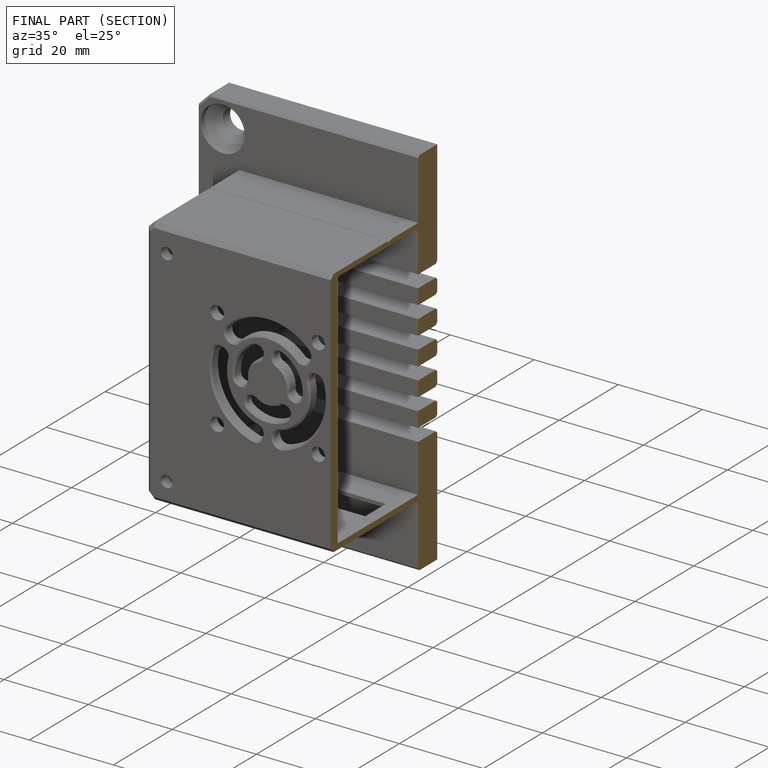
[diagram: finished part — half-section view (interior)]
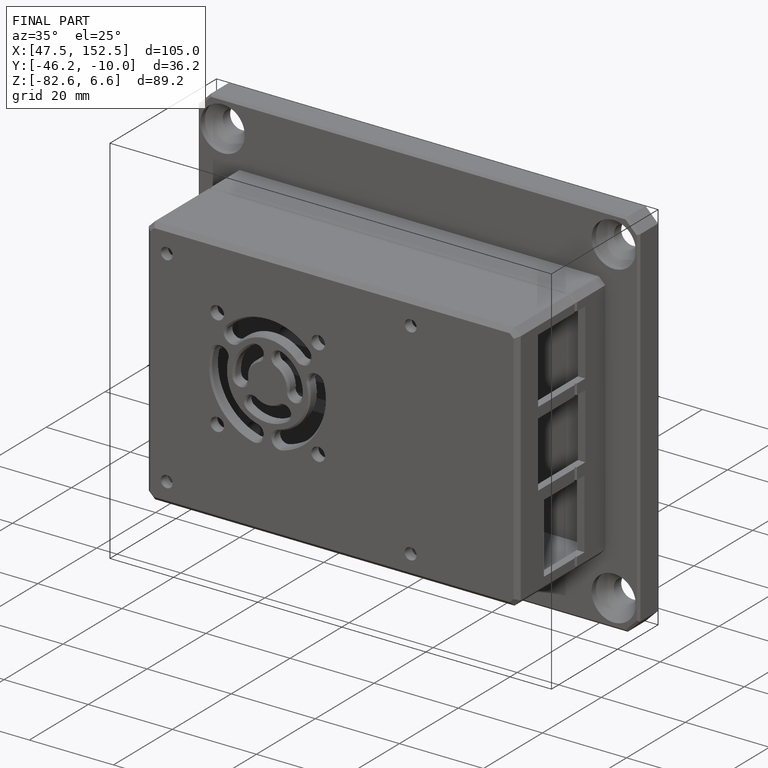
[diagram: finished part — iso view with bounding-box wireframe]
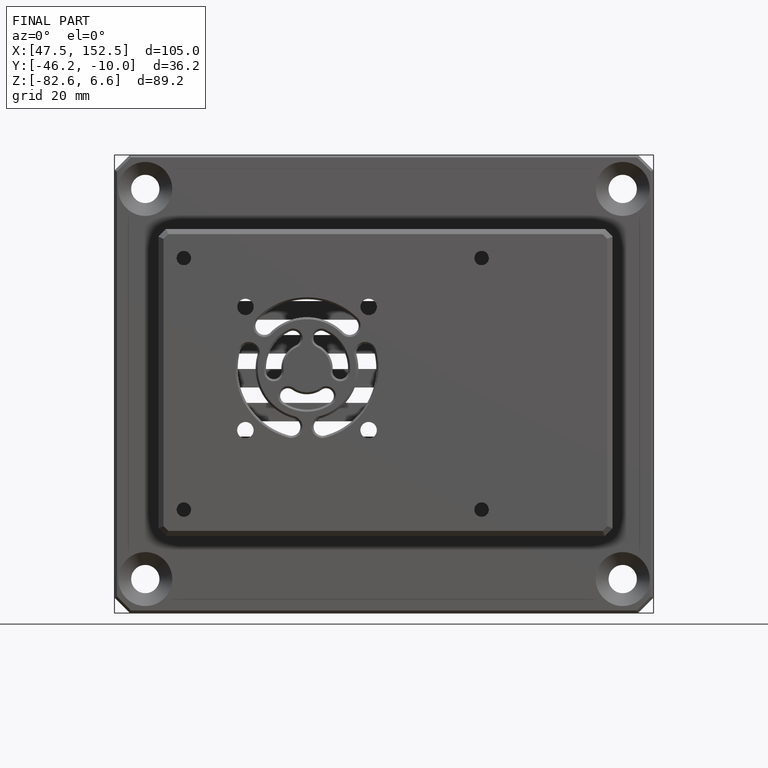
[diagram: finished part — front view with bounding-box wireframe]
